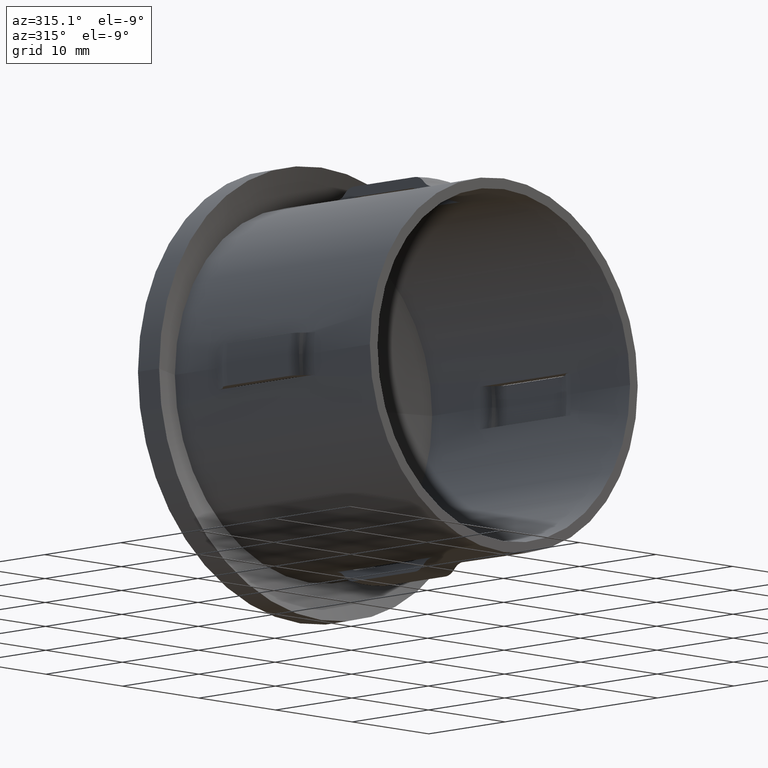
[diagram: clean part render]
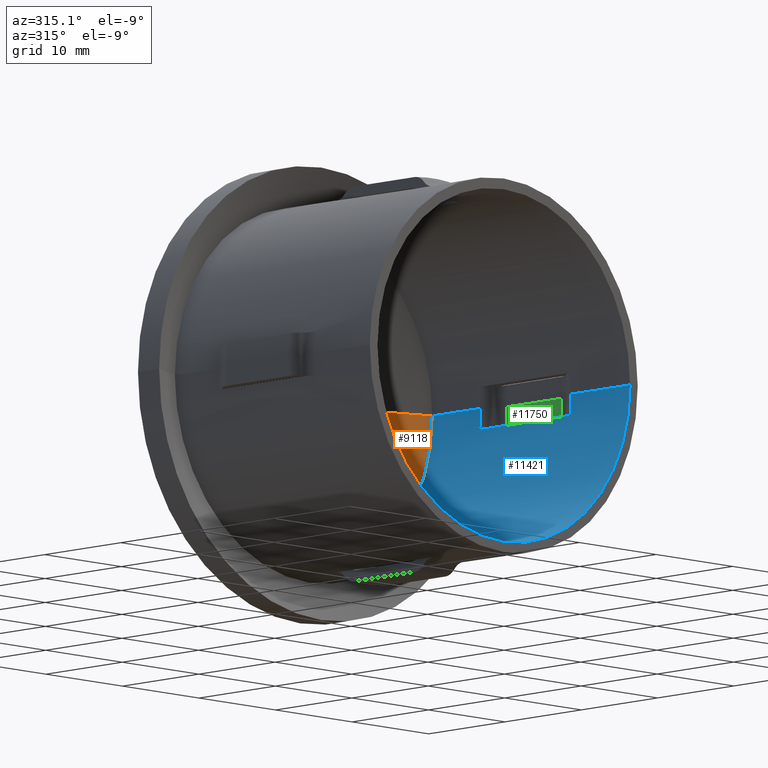
[diagram: same view with three faces highlighted in distinct colors, each labeled with its STEP entity id]
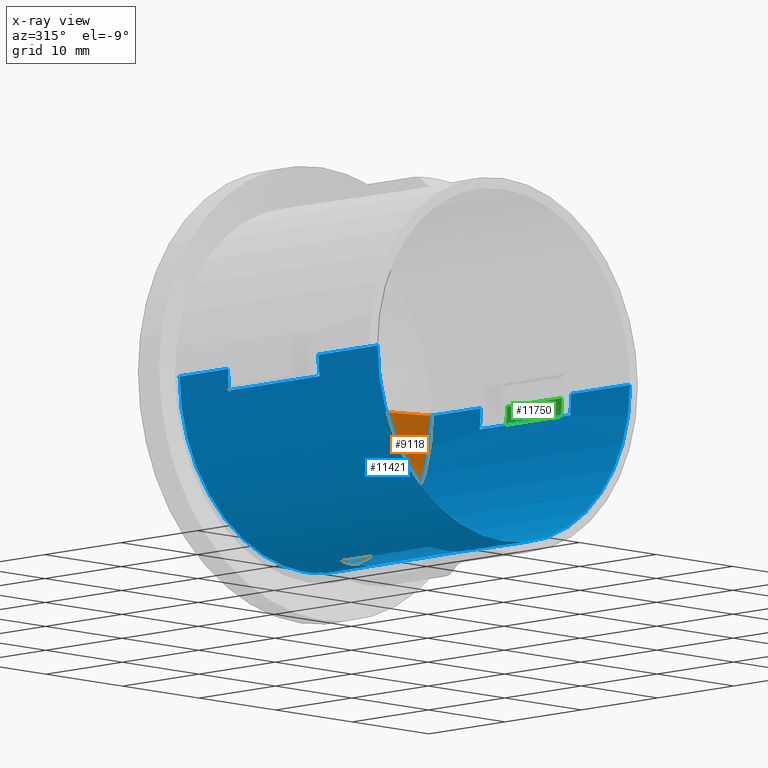
[diagram: x-ray of the same camera — body ghosted, the three highlighted faces saturated]
A machine part, auxiliary view with three faces highlighted in distinct colors.
The next image is the same camera in x-ray (body ghosted, the three faces saturated) — at least one of them is partly hidden behind the body in this view.
Their STEP definitions:

[orange] entity #9118 — the highlighted spherical surface has radius 47.5 mm.
#1 = B_SPLINE_CURVE_WITH_KNOTS ( 'NONE', 3,
 ( #3965, #2959, #11730, #8395 ),
 .UNSPECIFIED., .F., .F.,
 ( 4, 4 ),
 ( 0.0003123063050347144300, 0.0004518323523756138700 ),
 .UNSPECIFIED. ) ;
#10 = ORIENTED_EDGE ( 'NONE', *, *, #3679, .T. ) ;
#11 = CARTESIAN_POINT ( 'NONE',  ( 0.5936164529914526000, 28.81580472497133300, -2.763888888888889300 ) ) ;
#35 = DIRECTION ( 'NONE',  ( -1.224646799147353200E-016, 3.557430204473923300E-031, -1.000000000000000000 ) ) ;
#57 = CARTESIAN_POINT ( 'NONE',  ( 2.777470003932155200, 28.75860260697527000, -2.388403265765987700 ) ) ;
#73 = EDGE_CURVE ( 'NONE', #12124, #3719, #13384, .T. ) ;
#90 = CARTESIAN_POINT ( 'NONE',  ( -4.200538521075421400E-015, -18.60000000000000500, -2.763888888888889300 ) ) ;
#94 = EDGE_CURVE ( 'NONE', #7887, #12328, #12744, .T. ) ;
#108 = CIRCLE ( 'NONE', #3961, 47.34782460679669200 ) ;
#123 = VERTEX_POINT ( 'NONE', #5028 ) ;
#141 = CARTESIAN_POINT ( 'NONE',  ( 1.610814213836384600, 28.87269966974314200, -0.01587134176817903500 ) ) ;
#148 = VERTEX_POINT ( 'NONE', #8356 ) ;
#149 = CARTESIAN_POINT ( 'NONE',  ( 2.900240384615385500, 28.70293300599798100, -3.204861111111111600 ) ) ;
#153 = CARTESIAN_POINT ( 'NONE',  ( 2.780582879273563600, 28.75444017290868700, -2.466057218956666700 ) ) ;
#178 = ORIENTED_EDGE ( 'NONE', *, *, #8158, .T. ) ;
#185 = CARTESIAN_POINT ( 'NONE',  ( 3.413294604700855200, 28.70262021674962900, -2.657355936164529800 ) ) ;
#187 = VERTEX_POINT ( 'NONE', #3926 ) ;
#191 = AXIS2_PLACEMENT_3D ( 'NONE', #11982, #8690, #12931 ) ;
#197 = EDGE_CURVE ( 'NONE', #4861, #1748, #463, .T. ) ;
#204 = CARTESIAN_POINT ( 'NONE',  ( -1.538473368597382800, 28.87507872235828500, 5.604461258143858500E-012 ) ) ;
#218 = ORIENTED_EDGE ( 'NONE', *, *, #13123, .T. ) ;
#229 = VERTEX_POINT ( 'NONE', #2684 ) ;
#251 = B_SPLINE_CURVE_WITH_KNOTS ( 'NONE', 3,
 ( #13046, #7634, #10732, #9734, #6475, #3241, #11961, #2204, #5491, #10915, #6431, #13001 ),
 .UNSPECIFIED., .F., .F.,
 ( 4, 2, 2, 2, 2, 4 ),
 ( 0.0000000000000000000, 0.0002294742421389988700, 0.0004589484842779977300, 0.0006884227264169960600, 0.0008031598474864960300, 0.0009178969685559959000 ),
 .UNSPECIFIED. ) ;
#263 = CIRCLE ( 'NONE', #1653, 47.49386795650909900 ) ;
#305 = AXIS2_PLACEMENT_3D ( 'NONE', #11864, #3053, #6377 ) ;
#316 = VERTEX_POINT ( 'NONE', #13995 ) ;
#319 = ORIENTED_EDGE ( 'NONE', *, *, #10233, .T. ) ;
#320 = CIRCLE ( 'NONE', #2210, 47.30426841897509100 ) ;
#335 = EDGE_LOOP ( 'NONE', ( #6595, #8765, #624, #8773, #2682, #13528, #4319, #13897, #4059, #626, #5765, #6905, #10916, #12802, #1482, #2178, #7718, #11235, #13777, #11259, #7255, #7806, #3572, #2393, #13574, #9075, #3140, #7184, #8750, #12103, #10643, #12568, #10059, #2609 ) ) ;
#341 = CARTESIAN_POINT ( 'NONE',  ( -2.982127654246795200, 28.80629311595909300, -0.01696047008547008400 ) ) ;
#349 = EDGE_CURVE ( 'NONE', #7500, #9537, #9999, .T. ) ;
#392 = CARTESIAN_POINT ( 'NONE',  ( -2.074756227578924900, 28.74934571720291700, -3.160343080672297000 ) ) ;
#401 = CARTESIAN_POINT ( 'NONE',  ( 1.666923290498207000, 28.82878445783693200, -1.996132217361676700 ) ) ;
#428 = VERTEX_POINT ( 'NONE', #6522 ) ;
#432 = VERTEX_POINT ( 'NONE', #13052 ) ;
#440 = CARTESIAN_POINT ( 'NONE',  ( 1.907600554087974600, 28.77608634442443900, -2.850163326384269200 ) ) ;
#443 = CARTESIAN_POINT ( 'NONE',  ( 3.069845085470086100, 28.74539628850200000, -2.288995726495726600 ) ) ;
#452 = CARTESIAN_POINT ( 'NONE',  ( 1.450744556871377300, 28.84160247222118300, -1.855377532987873900 ) ) ;
#457 = EDGE_CURVE ( 'NONE', #5505, #12529, #9080, .T. ) ;
#463 = CIRCLE ( 'NONE', #9207, 47.50000000000000000 ) ;
#472 = CARTESIAN_POINT ( 'NONE',  ( 3.267215372402773700, 28.75110241472287200, -1.857866861441391100 ) ) ;
#481 = AXIS2_PLACEMENT_3D ( 'NONE', #8329, #6060, #9377 ) ;
#484 = B_SPLINE_CURVE_WITH_KNOTS ( 'NONE', 3,
 ( #5776, #5875, #12197, #13464 ),
 .UNSPECIFIED., .F., .F.,
 ( 4, 4 ),
 ( 2.194714508423963200E-019, 0.0001354809792551185600 ),
 .UNSPECIFIED. ) ;
#492 = CARTESIAN_POINT ( 'NONE',  ( 1.378038194444444600, 28.80558479929535300, -2.657355936164529800 ) ) ;
#502 = AXIS2_PLACEMENT_3D ( 'NONE', #5836, #2716, #2576 ) ;
#504 = CARTESIAN_POINT ( 'NONE',  ( 3.197048611111107200, 28.79228713807967200, 0.0000000000000000000 ) ) ;
#511 = DIRECTION ( 'NONE',  ( 1.000000000000000000, 0.0000000000000000000, 0.0000000000000000000 ) ) ;
#530 = CARTESIAN_POINT ( 'NONE',  ( 3.109215555847677500, 28.75007104848711800, -2.134280016099891200 ) ) ;
#537 = DIRECTION ( 'NONE',  ( 1.000000000000000000, -2.449293598294745100E-017, 0.0000000000000000000 ) ) ;
#544 = CARTESIAN_POINT ( 'NONE',  ( 3.587139423076920200, 28.76435823231860000, 0.0000000000000000000 ) ) ;
#549 = EDGE_CURVE ( 'NONE', #187, #5591, #9717, .T. ) ;
#561 = CARTESIAN_POINT ( 'NONE',  ( -4.200538521075421400E-015, -18.60000000000000500, 0.0000000000000000000 ) ) ;
#570 = ORIENTED_EDGE ( 'NONE', *, *, #11569, .T. ) ;
#577 = ORIENTED_EDGE ( 'NONE', *, *, #5984, .T. ) ;
#607 = CARTESIAN_POINT ( 'NONE',  ( 3.468416132478629300, 28.77320011918089900, 0.0000000000000000000 ) ) ;
#613 = CARTESIAN_POINT ( 'NONE',  ( 0.5936164529914526000, 28.86032478433318000, -1.848023504273504500 ) ) ;
#621 = CARTESIAN_POINT ( 'NONE',  ( -4.200538521075421400E-015, -18.60000000000000500, 0.0000000000000000000 ) ) ;
#624 = ORIENTED_EDGE ( 'NONE', *, *, #13334, .T. ) ;
#626 = ORIENTED_EDGE ( 'NONE', *, *, #3838, .T. ) ;
#637 = EDGE_CURVE ( 'NONE', #8660, #9269, #13549, .T. ) ;
#651 = CARTESIAN_POINT ( 'NONE',  ( 3.113918614586340000, 28.75831562486198600, -1.935654551365148200 ) ) ;
#659 = ORIENTED_EDGE ( 'NONE', *, *, #8613, .T. ) ;
#666 = CARTESIAN_POINT ( 'NONE',  ( -1.371563179528122200, 28.81714653186623200, -2.446050152142812600 ) ) ;
#671 = DIRECTION ( 'NONE',  ( -0.8369330630277728200, 2.049894793475136300E-017, 0.5473052603538085500 ) ) ;
#695 = VERTEX_POINT ( 'NONE', #11563 ) ;
#696 = DIRECTION ( 'NONE',  ( -1.224646799147353200E-016, 3.557430204473923300E-031, -1.000000000000000000 ) ) ;
#697 = DIRECTION ( 'NONE',  ( -0.6837766319733928900, 0.0000000000000000000, -0.7296913851534243500 ) ) ;
#721 = CARTESIAN_POINT ( 'NONE',  ( -2.309008997729700100, 28.78097584228811500, -2.441639957264957400 ) ) ;
#773 = FACE_BOUND ( 'NONE', #11385, .T. ) ;
#812 = CIRCLE ( 'NONE', #11966, 47.50000000000000000 ) ;
#828 = DIRECTION ( 'NONE',  ( 0.0000000000000000000, -0.0000000000000000000, 1.000000000000000000 ) ) ;
#830 = DIRECTION ( 'NONE',  ( 2.746118649521055200E-017, 1.000000000000000000, 0.0000000000000000000 ) ) ;
#850 = DIRECTION ( 'NONE',  ( 0.0000000000000000000, 0.0000000000000000000, -1.000000000000000000 ) ) ;
#872 = AXIS2_PLACEMENT_3D ( 'NONE', #3850, #11462, #5000 ) ;
#885 = VERTEX_POINT ( 'NONE', #1184 ) ;
#895 = EDGE_CURVE ( 'NONE', #12665, #12437, #2105, .T. ) ;
#907 = AXIS2_PLACEMENT_3D ( 'NONE', #5954, #13542, #3793 ) ;
#908 = CARTESIAN_POINT ( 'NONE',  ( -4.200538521075421400E-015, -18.60000000000000500, 0.0000000000000000000 ) ) ;
#934 = B_SPLINE_CURVE_WITH_KNOTS ( 'NONE', 3,
 ( #12872, #13862, #11693, #8459, #1927, #8359, #9563, #3024, #4122, #11743 ),
 .UNSPECIFIED., .F., .F.,
 ( 4, 2, 2, 2, 4 ),
 ( 0.0000000000000000000, 0.0001570379246596876900, 0.0003140758493193753900, 0.0004711137739790630800, 0.0006281516986387507700 ),
 .UNSPECIFIED. ) ;
#938 = AXIS2_PLACEMENT_3D ( 'NONE', #12995, #4393, #8754 ) ;
#942 = EDGE_CURVE ( 'NONE', #9273, #10816, #9656, .T. ) ;
#944 = VERTEX_POINT ( 'NONE', #9956 ) ;
#953 = EDGE_CURVE ( 'NONE', #12328, #1862, #8649, .T. ) ;
#968 = CARTESIAN_POINT ( 'NONE',  ( 3.434731845099416900, 28.73957803232180600, -1.849245028400688100 ) ) ;
#995 = ORIENTED_EDGE ( 'NONE', *, *, #3890, .T. ) ;
#1003 = CARTESIAN_POINT ( 'NONE',  ( -1.103855099372407700, 28.77998399376436500, -3.189280802948203200 ) ) ;
#1017 = AXIS2_PLACEMENT_3D ( 'NONE', #13823, #7195, #697 ) ;
#1030 = CARTESIAN_POINT ( 'NONE',  ( -4.200538521075421400E-015, -18.60000000000000500, -2.288995726495726600 ) ) ;
#1033 = EDGE_CURVE ( 'NONE', #695, #12124, #10393, .T. ) ;
#1052 = AXIS2_PLACEMENT_3D ( 'NONE', #10411, #13592, #511 ) ;
#1053 = CARTESIAN_POINT ( 'NONE',  ( -2.620865891070339100, 28.76121052454875500, -2.510321284340750300 ) ) ;
#1054 = DIRECTION ( 'NONE',  ( -2.745632241905695500E-017, -1.000000000000000000, 0.0000000000000000000 ) ) ;
#1090 = CIRCLE ( 'NONE', #11889, 47.49629058681043100 ) ;
#1101 = VERTEX_POINT ( 'NONE', #5974 ) ;
#1107 = CARTESIAN_POINT ( 'NONE',  ( 1.567461187016131900, 28.82841126391505100, -2.083313005484647800 ) ) ;
#1111 = AXIS2_PLACEMENT_3D ( 'NONE', #7229, #12826, #6194 ) ;
#1112 = CARTESIAN_POINT ( 'NONE',  ( -16.49999999999987600, 25.94211490264027000, 0.0000000000000000000 ) ) ;
#1167 = CARTESIAN_POINT ( 'NONE',  ( -2.329944577991451800, 28.73214181808996800, -3.238782051282051500 ) ) ;
#1184 = CARTESIAN_POINT ( 'NONE',  ( -2.145499465811966800, 28.85152086121371100, 0.0000000000000000000 ) ) ;
#1197 = DIRECTION ( 'NONE',  ( 1.000000000000000000, 0.0000000000000000000, 0.0000000000000000000 ) ) ;
#1206 = ORIENTED_EDGE ( 'NONE', *, *, #2916, .T. ) ;
#1210 = CARTESIAN_POINT ( 'NONE',  ( -2.652291210170918400, 28.72545081000991700, -3.085427441855173500 ) ) ;
#1227 = CARTESIAN_POINT ( 'NONE',  ( 1.745304141202861800, 28.81277155153603800, -2.288056202451147500 ) ) ;
#1241 = ORIENTED_EDGE ( 'NONE', *, *, #14097, .T. ) ;
#1243 = ORIENTED_EDGE ( 'NONE', *, *, #11893, .T. ) ;
#1245 = CARTESIAN_POINT ( 'NONE',  ( -1.404008914262821400, 28.87924253093265700, -0.01696047008547008400 ) ) ;
#1250 = VERTEX_POINT ( 'NONE', #4711 ) ;
#1253 = CARTESIAN_POINT ( 'NONE',  ( -2.577731606950366800, 28.72460496562481300, -3.160675583361750400 ) ) ;
#1276 = DIRECTION ( 'NONE',  ( -1.000000000000000000, 0.0000000000000000000, 1.224646799147353200E-016 ) ) ;
#1281 = CARTESIAN_POINT ( 'NONE',  ( 3.469833520600896600, 28.70185607347612600, -2.598335616227405200 ) ) ;
#1283 = FACE_BOUND ( 'NONE', #6061, .T. ) ;
#1302 = AXIS2_PLACEMENT_3D ( 'NONE', #6226, #671, #8299 ) ;
#1336 = CARTESIAN_POINT ( 'NONE',  ( -1.996775774789501000, 28.75760600848624900, -3.085929566408364800 ) ) ;
#1382 = EDGE_CURVE ( 'NONE', #5552, #11659, #263, .T. ) ;
#1394 = VERTEX_POINT ( 'NONE', #12459 ) ;
#1396 = CARTESIAN_POINT ( 'NONE',  ( 1.308718801908817900E-013, 28.89999999999999500, 0.0000000000000000000 ) ) ;
#1410 = CARTESIAN_POINT ( 'NONE',  ( 2.324909438434829700, 28.73238940648748500, -3.238782051282051500 ) ) ;
#1442 = VERTEX_POINT ( 'NONE', #12780 ) ;
#1446 = EDGE_CURVE ( 'NONE', #6821, #2253, #8096, .T. ) ;
#1464 = AXIS2_PLACEMENT_3D ( 'NONE', #7563, #850, #10758 ) ;
#1466 = AXIS2_PLACEMENT_3D ( 'NONE', #4147, #1901, #3178 ) ;
#1478 = CARTESIAN_POINT ( 'NONE',  ( 1.377776615326075800, 28.83852998650339600, -1.984677329804385400 ) ) ;
#1482 = ORIENTED_EDGE ( 'NONE', *, *, #9719, .T. ) ;
#1525 = CARTESIAN_POINT ( 'NONE',  ( -2.221395565359421300, 28.73807433481755400, -3.228779335341246600 ) ) ;
#1532 = EDGE_CURVE ( 'NONE', #1442, #9537, #5214, .T. ) ;
#1543 = VERTEX_POINT ( 'NONE', #9784 ) ;
#1575 = ORIENTED_EDGE ( 'NONE', *, *, #895, .T. ) ;
#1579 = CARTESIAN_POINT ( 'NONE',  ( 3.602611294627013000, 28.71736280079602800, -2.083193909958142200 ) ) ;
#1604 = DIRECTION ( 'NONE',  ( 0.0000000000000000000, -0.0000000000000000000, 1.000000000000000000 ) ) ;
#1606 = CARTESIAN_POINT ( 'NONE',  ( 3.780560805776566700, 28.69402060812370100, -2.288048880836949900 ) ) ;
#1653 = AXIS2_PLACEMENT_3D ( 'NONE', #11408, #7055, #2736 ) ;
#1675 = CARTESIAN_POINT ( 'NONE',  ( 0.7038595085470060700, 28.89478478519749800, 0.0000000000000000000 ) ) ;
#1686 = EDGE_CURVE ( 'NONE', #944, #13279, #11511, .T. ) ;
#1704 = ORIENTED_EDGE ( 'NONE', *, *, #5713, .T. ) ;
#1708 = VERTEX_POINT ( 'NONE', #5021 ) ;
#1739 = CARTESIAN_POINT ( 'NONE',  ( -4.200538521075421400E-015, -18.60000000000000500, 0.0000000000000000000 ) ) ;
#1748 = VERTEX_POINT ( 'NONE', #11485 ) ;
#1766 = DIRECTION ( 'NONE',  ( 2.396777221867288500E-017, 1.000000000000000000, 0.0000000000000000000 ) ) ;
#1774 = DIRECTION ( 'NONE',  ( -1.224646799147353200E-016, 3.557430204473923300E-031, -1.000000000000000000 ) ) ;
#1792 = CARTESIAN_POINT ( 'NONE',  ( -0.2544070512820498800, 28.82655179175830900, -2.628205128205128600 ) ) ;
#1803 = EDGE_CURVE ( 'NONE', #2879, #8978, #7930, .T. ) ;
#1828 = EDGE_CURVE ( 'NONE', #12938, #4761, #1, .T. ) ;
#1862 = VERTEX_POINT ( 'NONE', #7369 ) ;
#1865 = DIRECTION ( 'NONE',  ( 0.0000000000000000000, -0.0000000000000000000, 1.000000000000000000 ) ) ;
#1894 = B_SPLINE_CURVE_WITH_KNOTS ( 'NONE', 3,
 ( #9152, #8198, #2717, #5886, #10212, #11346, #530, #9294, #13431, #443 ),
 .UNSPECIFIED., .F., .F.,
 ( 4, 2, 2, 2, 4 ),
 ( 0.0000000000000000000, 0.0001192207449055118400, 0.0002384414898110236800, 0.0003576622347165355100, 0.0004768829796220473600 ),
 .UNSPECIFIED. ) ;
#1898 = EDGE_CURVE ( 'NONE', #13367, #4250, #1090, .T. ) ;
#1901 = DIRECTION ( 'NONE',  ( 0.0000000000000000000, 0.0000000000000000000, -1.000000000000000000 ) ) ;
#1924 = DIRECTION ( 'NONE',  ( 1.000000000000000000, 0.0000000000000000000, 0.0000000000000000000 ) ) ;
#1926 = EDGE_LOOP ( 'NONE', ( #10, #5135, #4647, #12975 ) ) ;
#1927 = CARTESIAN_POINT ( 'NONE',  ( -1.560187058890897700, 28.76907403777109500, -3.160608516996030700 ) ) ;
#1962 = AXIS2_PLACEMENT_3D ( 'NONE', #1739, #696, #13782 ) ;
#1991 = CIRCLE ( 'NONE', #872, 47.49998907956171500 ) ;
#2012 = CARTESIAN_POINT ( 'NONE',  ( -0.9004715844226495200, 28.80363252573304300, -2.887506672426231700 ) ) ;
#2013 = CIRCLE ( 'NONE', #502, 47.50000000000000000 ) ;
#2025 = CARTESIAN_POINT ( 'NONE',  ( -4.200538521075421400E-015, -18.60000000000000500, 0.0000000000000000000 ) ) ;
#2036 = VERTEX_POINT ( 'NONE', #3633 ) ;
#2038 = CARTESIAN_POINT ( 'NONE',  ( -1.239692319090557100, 28.82095999177336100, -2.443029231540083700 ) ) ;
#2039 = DIRECTION ( 'NONE',  ( 0.0000000000000000000, -0.0000000000000000000, 1.000000000000000000 ) ) ;
#2050 = VERTEX_POINT ( 'NONE', #9056 ) ;
#2067 = AXIS2_PLACEMENT_3D ( 'NONE', #11773, #7455, #8490 ) ;
#2077 = CARTESIAN_POINT ( 'NONE',  ( -2.187900641025639600, 28.81358349579423700, -1.848023504273504300 ) ) ;
#2105 = B_SPLINE_CURVE_WITH_KNOTS ( 'NONE', 3,
 ( #2239, #1281, #7857, #13177, #2429, #11149, #9867, #12105 ),
 .UNSPECIFIED., .F., .F.,
 ( 4, 2, 2, 4 ),
 ( 0.0000000000000000000, 0.0002451878729591678500, 0.0003677818094387526500, 0.0004903757459183374400 ),
 .UNSPECIFIED. ) ;
#2118 = CIRCLE ( 'NONE', #5851, 16.50000000000000000 ) ;
#2135 = DIRECTION ( 'NONE',  ( 1.000000000000000000, 0.0000000000000000000, 0.0000000000000000000 ) ) ;
#2167 = CARTESIAN_POINT ( 'NONE',  ( 1.746928418803419100, 28.81492212892972700, -2.241294404380342000 ) ) ;
#2172 = EDGE_CURVE ( 'NONE', #6040, #3828, #8756, .T. ) ;
#2178 = ORIENTED_EDGE ( 'NONE', *, *, #8053, .T. ) ;
#2204 = CARTESIAN_POINT ( 'NONE',  ( 2.137467508457876700, 28.81408993997694900, -1.893893791318925800 ) ) ;
#2210 = AXIS2_PLACEMENT_3D ( 'NONE', #12623, #12484, #7080 ) ;
#2234 = DIRECTION ( 'NONE',  ( 0.0000000000000000000, 0.0000000000000000000, -1.000000000000000000 ) ) ;
#2239 = CARTESIAN_POINT ( 'NONE',  ( 3.413294604700855200, 28.70262021674962900, -2.657355936164529800 ) ) ;
#2253 = VERTEX_POINT ( 'NONE', #7810 ) ;
#2258 = VERTEX_POINT ( 'NONE', #11144 ) ;
#2267 = DIRECTION ( 'NONE',  ( -0.8369330630277724800, 2.049894793475135400E-017, 0.5473052603538090000 ) ) ;
#2310 = EDGE_CURVE ( 'NONE', #10762, #10286, #6428, .T. ) ;
#2312 = DIRECTION ( 'NONE',  ( -0.7297249646783454700, 1.787310684502530700E-017, 0.6837407958614050200 ) ) ;
#2320 = FACE_BOUND ( 'NONE', #12674, .T. ) ;
#2348 = CARTESIAN_POINT ( 'NONE',  ( -4.163795405982905400, 28.71715130708013700, 0.0000000000000000000 ) ) ;
#2378 = CARTESIAN_POINT ( 'NONE',  ( -1.963701627880940300, 28.78622850512404000, -2.634740049770944600 ) ) ;
#2393 = ORIENTED_EDGE ( 'NONE', *, *, #1532, .F. ) ;
#2429 = CARTESIAN_POINT ( 'NONE',  ( 3.624118579891404000, 28.70028362571965600, -2.408447389724652800 ) ) ;
#2464 = ORIENTED_EDGE ( 'NONE', *, *, #10325, .T. ) ;
#2470 = CIRCLE ( 'NONE', #7639, 47.40914756629770500 ) ;
#2474 = EDGE_CURVE ( 'NONE', #5139, #3346, #9971, .T. ) ;
#2483 = SPHERICAL_SURFACE ( 'NONE', #6833, 47.50000000000000000 ) ;
#2484 = CARTESIAN_POINT ( 'NONE',  ( 1.657115695876904000, 28.87110685234593200, -0.01155972976702245400 ) ) ;
#2493 = DIRECTION ( 'NONE',  ( -0.7863974287229254000, 0.0000000000000000000, 0.6177208787939512100 ) ) ;
#2510 = CIRCLE ( 'NONE', #191, 47.49293154820183800 ) ;
#2511 = CARTESIAN_POINT ( 'NONE',  ( -3.409054487179486800, 28.66898785421504000, -3.204861111111111600 ) ) ;
#2532 = CARTESIAN_POINT ( 'NONE',  ( 1.341202173477564500, 28.83960457483614100, -1.983707264957265300 ) ) ;
#2558 = CARTESIAN_POINT ( 'NONE',  ( -1.603247870517148500, 28.80656824610662200, -2.510336949988010600 ) ) ;
#2565 = CARTESIAN_POINT ( 'NONE',  ( -4.200538521075421400E-015, -18.60000000000000500, 0.0000000000000000000 ) ) ;
#2576 = DIRECTION ( 'NONE',  ( 1.000000000000000000, 0.0000000000000000000, 0.0000000000000000000 ) ) ;
#2577 = CARTESIAN_POINT ( 'NONE',  ( 1.434580206983896000, 28.80724978317919100, -2.598332383681360100 ) ) ;
#2609 = ORIENTED_EDGE ( 'NONE', *, *, #11165, .T. ) ;
#2637 = CARTESIAN_POINT ( 'NONE',  ( 3.517467452725065300, 28.72673815778875200, -2.014593814588340900 ) ) ;
#2659 = DIRECTION ( 'NONE',  ( -1.000000000000000000, 2.449293598294745100E-017, 0.0000000000000000000 ) ) ;
#2660 = FACE_OUTER_BOUND ( 'NONE', #335, .T. ) ;
#2671 = CARTESIAN_POINT ( 'NONE',  ( 1.566312649307471700, 28.81132731996133600, -2.442207606113690100 ) ) ;
#2682 = ORIENTED_EDGE ( 'NONE', *, *, #8027, .T. ) ;
#2684 = CARTESIAN_POINT ( 'NONE',  ( 2.324909438434829700, 28.80706282011920300, -1.848023504273504500 ) ) ;
#2686 = CARTESIAN_POINT ( 'NONE',  ( 3.663461538461539200, 28.70494709673084800, -2.251894698183760600 ) ) ;
#2716 = DIRECTION ( 'NONE',  ( 0.0000000000000000000, -0.0000000000000000000, 1.000000000000000000 ) ) ;
#2717 = CARTESIAN_POINT ( 'NONE',  ( 3.296808346605392800, 28.74366516778688000, -1.989986206869410100 ) ) ;
#2736 = DIRECTION ( 'NONE',  ( 2.511108151532653600E-017, 1.000000000000000000, 0.0000000000000000000 ) ) ;
#2740 = CARTESIAN_POINT ( 'NONE',  ( 2.753787516360805200, 28.73442217376139500, -2.850449187000966900 ) ) ;
#2761 = B_SPLINE_CURVE_WITH_KNOTS ( 'NONE', 3,
 ( #8747, #9132, #9181, #5768, #2558, #13359 ),
 .UNSPECIFIED., .F., .F.,
 ( 4, 2, 4 ),
 ( 0.0000000000000000000, 0.0002071963014099282300, 0.0004143926028198564500 ),
 .UNSPECIFIED. ) ;
#2777 = CARTESIAN_POINT ( 'NONE',  ( 1.763888888888887700, -18.60000000000000500, 0.0000000000000000000 ) ) ;
#2782 = CARTESIAN_POINT ( 'NONE',  ( -4.200538521075421400E-015, -18.60000000000000500, -2.628205128205128600 ) ) ;
#2800 = DIRECTION ( 'NONE',  ( -2.511093901284688800E-017, -1.000000000000000000, 0.0000000000000000000 ) ) ;
#2821 = CARTESIAN_POINT ( 'NONE',  ( -1.916533119658118800, 28.77665767229980900, -2.833585820646367500 ) ) ;
#2825 = CARTESIAN_POINT ( 'NONE',  ( 3.078325320512816700, 28.80014676370832300, 0.0000000000000000000 ) ) ;
#2845 = CARTESIAN_POINT ( 'NONE',  ( -4.200538521075421400E-015, -18.60000000000000500, 0.0000000000000000000 ) ) ;
#2858 = AXIS2_PLACEMENT_3D ( 'NONE', #4079, #7334, #5133 ) ;
#2876 = CARTESIAN_POINT ( 'NONE',  ( -4.200538521075421400E-015, -18.60000000000000500, 0.0000000000000000000 ) ) ;
#2879 = VERTEX_POINT ( 'NONE', #3837 ) ;
#2916 = EDGE_CURVE ( 'NONE', #10444, #316, #934, .T. ) ;
#2921 = CARTESIAN_POINT ( 'NONE',  ( -2.257360973193699200, 28.78342126048036700, -2.443028144359199200 ) ) ;
#2927 = CARTESIAN_POINT ( 'NONE',  ( 0.5936164529914513800, -18.60000000000000500, 0.0000000000000000000 ) ) ;
#2935 = CARTESIAN_POINT ( 'NONE',  ( -0.9460500746589594100, 28.81746011569121500, -2.634785837196632800 ) ) ;
#2959 = CARTESIAN_POINT ( 'NONE',  ( -1.310969046251443800, 28.88192685054500300, -0.01156036758800212100 ) ) ;
#3004 = B_SPLINE_CURVE_WITH_KNOTS ( 'NONE', 3,
 ( #3438, #7824, #6571, #7648, #1107, #10159, #4833, #7917, #1478, #2532 ),
 .UNSPECIFIED., .F., .F.,
 ( 4, 2, 2, 2, 4 ),
 ( 0.0000000000000000000, 0.0001089986700114813300, 0.0002179973400229626600, 0.0003269960100344440000, 0.0004359946800459253200 ),
 .UNSPECIFIED. ) ;
#3012 = CARTESIAN_POINT ( 'NONE',  ( 1.620282249893610700, 28.81503270398367500, -2.332604823348547900 ) ) ;
#3024 = CARTESIAN_POINT ( 'NONE',  ( -1.702729909506086800, 28.77823650028550900, -2.942142202721783400 ) ) ;
#3046 = CIRCLE ( 'NONE', #10965, 47.39175946573927000 ) ;
#3053 = DIRECTION ( 'NONE',  ( 0.0000000000000000000, -0.0000000000000000000, 1.000000000000000000 ) ) ;
#3076 = CARTESIAN_POINT ( 'NONE',  ( -1.092467585728109200, 28.82217243454101000, -2.489328920318950800 ) ) ;
#3079 = CARTESIAN_POINT ( 'NONE',  ( 0.4748931623931618700, 28.80903874720687300, -2.899572649572649900 ) ) ;
#3090 = VERTEX_POINT ( 'NONE', #13854 ) ;
#3140 = ORIENTED_EDGE ( 'NONE', *, *, #1446, .T. ) ;
#3152 = EDGE_CURVE ( 'NONE', #2258, #695, #8533, .T. ) ;
#3154 = CARTESIAN_POINT ( 'NONE',  ( 3.583785268539569500, 28.72684924324017400, -1.891709657084339000 ) ) ;
#3155 = CIRCLE ( 'NONE', #10748, 47.41711860849575500 ) ;
#3157 = CARTESIAN_POINT ( 'NONE',  ( -2.582761585202990200, 28.76632199686647700, -2.451710236378204800 ) ) ;
#3164 = CARTESIAN_POINT ( 'NONE',  ( 2.364184046858284600, 28.80510990699454200, -1.848711789550082200 ) ) ;
#3178 = DIRECTION ( 'NONE',  ( -1.000000000000000000, 0.0000000000000000000, 0.0000000000000000000 ) ) ;
#3185 = CARTESIAN_POINT ( 'NONE',  ( -1.312316372863246800, 28.77127944822482100, -3.238782051282052000 ) ) ;
#3233 = DIRECTION ( 'NONE',  ( 0.0000000000000000000, -0.0000000000000000000, 1.000000000000000000 ) ) ;
#3241 = CARTESIAN_POINT ( 'NONE',  ( 1.991856558683162900, 28.81513490699281400, -2.023229239912322200 ) ) ;
#3290 = B_SPLINE_CURVE_WITH_KNOTS ( 'NONE', 3,
 ( #1167, #5658, #4563, #4471, #1253, #1210, #10896, #9803, #9842, #3450 ),
 .UNSPECIFIED., .F., .F.,
 ( 4, 2, 2, 2, 4 ),
 ( 0.0000000000000000000, 0.0001570396412510599700, 0.0003140792825021199400, 0.0004711189237531799300, 0.0006281585650042398700 ),
 .UNSPECIFIED. ) ;
#3293 = CARTESIAN_POINT ( 'NONE',  ( -4.200538521075421400E-015, -18.60000000000000500, 0.0000000000000000000 ) ) ;
#3321 = CARTESIAN_POINT ( 'NONE',  ( -2.206058081185401100, 28.78547032858037000, -2.450141223337227700 ) ) ;
#3346 = VERTEX_POINT ( 'NONE', #11810 ) ;
#3362 = VERTEX_POINT ( 'NONE', #13077 ) ;
#3364 = CIRCLE ( 'NONE', #1464, 47.41952043420385400 ) ;
#3372 = CARTESIAN_POINT ( 'NONE',  ( -2.067235764524014900, 28.78813738002539000, -2.518658109332564200 ) ) ;
#3378 = B_SPLINE_CURVE_WITH_KNOTS ( 'NONE', 3,
 ( #9615, #2038, #5332, #3076, #10707, #5287, #2935, #13917, #5186, #10750 ),
 .UNSPECIFIED., .F., .F.,
 ( 4, 2, 2, 2, 4 ),
 ( 2.168404344971008900E-019, 0.0001536446162769485300, 0.0003072892325538968500, 0.0004609338488308453600, 0.0006145784651077939200 ),
 .UNSPECIFIED. ) ;
#3393 = ORIENTED_EDGE ( 'NONE', *, *, #5224, .T. ) ;
#3400 = CARTESIAN_POINT ( 'NONE',  ( 2.781517094017094600, 28.75020135757710400, -2.543932792467948900 ) ) ;
#3402 = DIRECTION ( 'NONE',  ( -1.000000000000000000, 0.0000000000000000000, 0.0000000000000000000 ) ) ;
#3404 = DIRECTION ( 'NONE',  ( 0.0000000000000000000, -0.0000000000000000000, 1.000000000000000000 ) ) ;
#3418 = VERTEX_POINT ( 'NONE', #14068 ) ;
#3428 = CARTESIAN_POINT ( 'NONE',  ( 1.606711376602700100, 28.80282423857019600, -2.578650390227678300 ) ) ;
#3438 = CARTESIAN_POINT ( 'NONE',  ( 1.628205128205128400, 28.81864526036965300, -2.251894698183760600 ) ) ;
#3450 = CARTESIAN_POINT ( 'NONE',  ( -2.730635683760683100, 28.73657040694928400, -2.835970886752137200 ) ) ;
#3475 = AXIS2_PLACEMENT_3D ( 'NONE', #14001, #11797, #4224 ) ;
#3476 = CARTESIAN_POINT ( 'NONE',  ( -4.200538521075421400E-015, -18.60000000000000500, 0.0000000000000000000 ) ) ;
#3485 = ORIENTED_EDGE ( 'NONE', *, *, #12375, .T. ) ;
#3498 = AXIS2_PLACEMENT_3D ( 'NONE', #10545, #6239, #830 ) ;
#3514 = CARTESIAN_POINT ( 'NONE',  ( -1.916533119658118800, 28.77665767229980900, -2.833585820646367500 ) ) ;
#3555 = AXIS2_PLACEMENT_3D ( 'NONE', #10802, #5294, #10715 ) ;
#3572 = ORIENTED_EDGE ( 'NONE', *, *, #349, .T. ) ;
#3595 = VERTEX_POINT ( 'NONE', #3758 ) ;
#3620 = B_SPLINE_CURVE_WITH_KNOTS ( 'NONE', 3,
 ( #13060, #3164, #12971, #7552, #14092, #4363, #5465, #12020, #13104, #57, #153, #3400 ),
 .UNSPECIFIED., .F., .F.,
 ( 4, 2, 2, 2, 2, 4 ),
 ( 0.0000000000000000000, 0.0001166164754300748600, 0.0002332329508601497200, 0.0004664659017202994500, 0.0006996988525804491700, 0.0009329318034405989000 ),
 .UNSPECIFIED. ) ;
#3627 = CARTESIAN_POINT ( 'NONE',  ( 2.247493268765581300, 28.73651629703972100, -3.233344784282651900 ) ) ;
#3633 = CARTESIAN_POINT ( 'NONE',  ( 1.378038194444444600, 28.80558479929535300, -2.657355936164529800 ) ) ;
#3640 = CARTESIAN_POINT ( 'NONE',  ( 1.593293470188588400, 28.83441490893150000, -1.921059707229513900 ) ) ;
#3641 = CARTESIAN_POINT ( 'NONE',  ( 1.095217225051392100, 28.84096431261042400, -2.099294963102508000 ) ) ;
#3642 = AXIS2_PLACEMENT_3D ( 'NONE', #561, #4961, #8091 ) ;
#3659 = DIRECTION ( 'NONE',  ( -1.000000000000000000, 2.449293598294745100E-017, 0.0000000000000000000 ) ) ;
#3678 = CIRCLE ( 'NONE', #11093, 47.50000000000000000 ) ;
#3679 = EDGE_CURVE ( 'NONE', #5684, #9756, #13025, .T. ) ;
#3685 = CARTESIAN_POINT ( 'NONE',  ( -1.918101019736618000, 28.77336672112465300, -2.887549012337451900 ) ) ;
#3700 = VERTEX_POINT ( 'NONE', #13456 ) ;
#3715 = ORIENTED_EDGE ( 'NONE', *, *, #73, .T. ) ;
#3719 = VERTEX_POINT ( 'NONE', #7347 ) ;
#3741 = CARTESIAN_POINT ( 'NONE',  ( 3.413016960336281400, 28.73564953905693600, -1.984676903705451900 ) ) ;
#3758 = CARTESIAN_POINT ( 'NONE',  ( 0.04240117521367269700, 28.89998107515770400, 0.0000000000000000000 ) ) ;
#3764 = VERTEX_POINT ( 'NONE', #9748 ) ;
#3793 = DIRECTION ( 'NONE',  ( 1.000000000000000000, 0.0000000000000000000, 0.0000000000000000000 ) ) ;
#3807 = CARTESIAN_POINT ( 'NONE',  ( 3.641948160832173100, 28.69001323952201000, -2.578674735900991200 ) ) ;
#3817 = VERTEX_POINT ( 'NONE', #7389 ) ;
#3828 = VERTEX_POINT ( 'NONE', #7474 ) ;
#3831 = CARTESIAN_POINT ( 'NONE',  ( 2.349025106837602900, 28.84188108673017200, 0.0000000000000000000 ) ) ;
#3837 = CARTESIAN_POINT ( 'NONE',  ( -3.290331196581196300, 28.67740037137502500, -3.204861111111111600 ) ) ;
#3838 = EDGE_CURVE ( 'NONE', #885, #8660, #10483, .T. ) ;
#3850 = CARTESIAN_POINT ( 'NONE',  ( 0.02695531928586977100, -18.60000000000000500, -0.01763100339594039400 ) ) ;
#3858 = CARTESIAN_POINT ( 'NONE',  ( 0.9266228345114573300, 28.84114390801172300, -2.175446503620687400 ) ) ;
#3866 = CARTESIAN_POINT ( 'NONE',  ( -1.360125207936848000, 28.81752997343437900, -2.444976612809974800 ) ) ;
#3877 = CARTESIAN_POINT ( 'NONE',  ( 1.763888888888888800, 28.75892272049841800, -3.204861111111111600 ) ) ;
#3881 = DIRECTION ( 'NONE',  ( -1.000000000000000000, 2.449293598294745100E-017, 0.0000000000000000000 ) ) ;
#3890 = EDGE_CURVE ( 'NONE', #7576, #6500, #9101, .T. ) ;
#3900 = DIRECTION ( 'NONE',  ( 1.000000000000000000, 0.0000000000000000000, 0.0000000000000000000 ) ) ;
#3903 = CARTESIAN_POINT ( 'NONE',  ( 0.9158653846153846900, 28.83597463066767800, -2.288995726495726600 ) ) ;
#3907 = VERTEX_POINT ( 'NONE', #1112 ) ;
#3926 = CARTESIAN_POINT ( 'NONE',  ( 1.702011409923240600, 28.86949712352650400, -4.719540527158873300E-014 ) ) ;
#3961 = AXIS2_PLACEMENT_3D ( 'NONE', #13488, #9121, #13591 ) ;
#3965 = CARTESIAN_POINT ( 'NONE',  ( -1.266070855034022900, 28.88312399779561100, -4.703002208863733100E-014 ) ) ;
#3966 = CARTESIAN_POINT ( 'NONE',  ( -4.200538521075421400E-015, -18.60000000000000500, 0.0000000000000000000 ) ) ;
#3998 = ORIENTED_EDGE ( 'NONE', *, *, #1898, .T. ) ;
#3999 = CARTESIAN_POINT ( 'NONE',  ( -4.200538521075421400E-015, -18.60000000000000500, -3.204861111111111600 ) ) ;
#4007 = CARTESIAN_POINT ( 'NONE',  ( -1.428389590010682900, 28.81503789567908700, -2.454360309829060100 ) ) ;
#4047 = EDGE_CURVE ( 'NONE', #3090, #12938, #9289, .T. ) ;
#4059 = ORIENTED_EDGE ( 'NONE', *, *, #8077, .T. ) ;
#4065 = B_SPLINE_CURVE_WITH_KNOTS ( 'NONE', 3,
 ( #3903, #10427, #3858, #12569, #12433, #9233, #6065, #13652, #13693, #11376 ),
 .UNSPECIFIED., .F., .F.,
 ( 4, 2, 2, 2, 4 ),
 ( 0.0000000000000000000, 0.0001704854350706648600, 0.0003409708701413297100, 0.0005114563052119945400, 0.0006819417402826594300 ),
 .UNSPECIFIED. ) ;
#4079 = CARTESIAN_POINT ( 'NONE',  ( -4.200538521075421400E-015, -18.60000000000000500, 0.0000000000000000000 ) ) ;
#4113 = CARTESIAN_POINT ( 'NONE',  ( -2.378002398868208600, 28.77738995967595100, -2.445000040853618100 ) ) ;
#4122 = CARTESIAN_POINT ( 'NONE',  ( -1.710911315007732000, 28.78120669692347300, -2.889095122534775000 ) ) ;
#4131 = ORIENTED_EDGE ( 'NONE', *, *, #5166, .T. ) ;
#4136 = DIRECTION ( 'NONE',  ( 1.000000000000000000, 0.0000000000000000000, 0.0000000000000000000 ) ) ;
#4147 = CARTESIAN_POINT ( 'NONE',  ( -4.200538521075421400E-015, -18.60000000000000500, -3.069177350427351000 ) ) ;
#4160 = EDGE_CURVE ( 'NONE', #4161, #10816, #8433, .T. ) ;
#4161 = VERTEX_POINT ( 'NONE', #8775 ) ;
#4166 = DIRECTION ( 'NONE',  ( 0.0000000000000000000, -0.0000000000000000000, 1.000000000000000000 ) ) ;
#4169 = DIRECTION ( 'NONE',  ( 1.000000000000000000, 0.0000000000000000000, 0.0000000000000000000 ) ) ;
#4192 = CIRCLE ( 'NONE', #13729, 47.50000000000000000 ) ;
#4202 = CIRCLE ( 'NONE', #5272, 47.41141717402941000 ) ;
#4224 = DIRECTION ( 'NONE',  ( 1.000000000000000000, 0.0000000000000000000, 0.0000000000000000000 ) ) ;
#4246 = EDGE_CURVE ( 'NONE', #3700, #3362, #3004, .T. ) ;
#4249 = CARTESIAN_POINT ( 'NONE',  ( -2.309008997729700100, 28.78097584228811500, -2.441639957264957400 ) ) ;
#4250 = VERTEX_POINT ( 'NONE', #11 ) ;
#4256 = CARTESIAN_POINT ( 'NONE',  ( 0.5936164529914513800, -18.60000000000000500, 0.0000000000000000000 ) ) ;
#4259 = CARTESIAN_POINT ( 'NONE',  ( 3.772763192674377200, 28.70176372442842400, -2.135912887851675500 ) ) ;
#4274 = CARTESIAN_POINT ( 'NONE',  ( 0.7462606837606832200, 28.81364796344770700, -2.763888888888889300 ) ) ;
#4283 = DIRECTION ( 'NONE',  ( 0.0000000000000000000, 0.0000000000000000000, -1.000000000000000000 ) ) ;
#4295 = CARTESIAN_POINT ( 'NONE',  ( -1.258096635036127100, 28.77291438838779000, -3.236838185483688100 ) ) ;
#4319 = ORIENTED_EDGE ( 'NONE', *, *, #1828, .T. ) ;
#4349 = EDGE_CURVE ( 'NONE', #11574, #13853, #9570, .T. ) ;
#4363 = CARTESIAN_POINT ( 'NONE',  ( 2.609867865209527500, 28.78788531738884900, -1.957798445783516700 ) ) ;
#4366 = EDGE_CURVE ( 'NONE', #6821, #10741, #11482, .T. ) ;
#4393 = DIRECTION ( 'NONE',  ( 0.8679300138597093600, -2.125815426714455700E-017, -0.4966865118376833100 ) ) ;
#4396 = DIRECTION ( 'NONE',  ( -2.510980068126082800E-017, -1.000000000000000000, 0.0000000000000000000 ) ) ;
#4403 = CARTESIAN_POINT ( 'NONE',  ( 3.069845085470086100, 28.74539628850200000, -2.288995726495726600 ) ) ;
#4448 = CARTESIAN_POINT ( 'NONE',  ( 1.739486214873448900, 28.81074292125694900, -2.334060180440955500 ) ) ;
#4459 = B_SPLINE_CURVE_WITH_KNOTS ( 'NONE', 3,
 ( #5302, #2012, #10721, #11862, #5346, #7534, #1003, #9726, #4295, #3185 ),
 .UNSPECIFIED., .F., .F.,
 ( 4, 2, 2, 2, 4 ),
 ( 0.0000000000000000000, 0.0001605599240008076200, 0.0003211198480016152400, 0.0004816797720024228700, 0.0006422396960032304900 ),
 .UNSPECIFIED. ) ;
#4471 = CARTESIAN_POINT ( 'NONE',  ( -2.533246952683536200, 28.72506710219093400, -3.189591816212015400 ) ) ;
#4474 = VERTEX_POINT ( 'NONE', #13623 ) ;
#4479 = CARTESIAN_POINT ( 'NONE',  ( -1.917948996971990300, 28.77970003238309000, -2.781760876126897000 ) ) ;
#4485 = DIRECTION ( 'NONE',  ( 0.0000000000000000000, -0.0000000000000000000, 1.000000000000000000 ) ) ;
#4563 = CARTESIAN_POINT ( 'NONE',  ( -2.434899419224889600, 28.72754142659275100, -3.229225857168848400 ) ) ;
#4578 = EDGE_CURVE ( 'NONE', #944, #1708, #12171, .T. ) ;
#4579 = CARTESIAN_POINT ( 'NONE',  ( -2.730635683760683100, 28.73657040694928400, -2.835970886752137200 ) ) ;
#4620 = DIRECTION ( 'NONE',  ( -2.904862207577519400E-015, -1.000000000000000000, -0.0000000000000000000 ) ) ;
#4647 = ORIENTED_EDGE ( 'NONE', *, *, #1382, .T. ) ;
#4654 = CARTESIAN_POINT ( 'NONE',  ( 3.662484335461091000, 28.70677022556030200, -2.215186468759306100 ) ) ;
#4689 = ORIENTED_EDGE ( 'NONE', *, *, #8800, .T. ) ;
#4708 = ORIENTED_EDGE ( 'NONE', *, *, #10038, .T. ) ;
#4711 = CARTESIAN_POINT ( 'NONE',  ( -1.565133380074785100, 28.81085819112973900, -2.451710236378204800 ) ) ;
#4719 = CIRCLE ( 'NONE', #4727, 47.49629058681043100 ) ;
#4727 = AXIS2_PLACEMENT_3D ( 'NONE', #2927, #9792, #10600 ) ;
#4736 = CIRCLE ( 'NONE', #6619, 47.49413748023931000 ) ;
#4737 = CARTESIAN_POINT ( 'NONE',  ( 1.993467638567413900, 28.75917994644647300, -3.064325235815619700 ) ) ;
#4751 = CARTESIAN_POINT ( 'NONE',  ( 1.045262569916445300, 28.83710787759273900, -2.209031939955314900 ) ) ;
#4761 = VERTEX_POINT ( 'NONE', #10094 ) ;
#4764 = EDGE_CURVE ( 'NONE', #9756, #5552, #10646, .T. ) ;
#4768 = AXIS2_PLACEMENT_3D ( 'NONE', #11976, #3404, #9883 ) ;
#4816 = CARTESIAN_POINT ( 'NONE',  ( 2.961885376912246800, 28.75766304070394600, -2.175390296233595600 ) ) ;
#4833 = CARTESIAN_POINT ( 'NONE',  ( 1.482298995773761600, 28.83411574883862400, -2.014636026718355800 ) ) ;
#4861 = VERTEX_POINT ( 'NONE', #1396 ) ;
#4881 = B_SPLINE_CURVE_WITH_KNOTS ( 'NONE', 3,
 ( #5368, #10787, #12876, #6392 ),
 .UNSPECIFIED., .F., .F.,
 ( 4, 4 ),
 ( 0.0000000000000000000, 0.0001422578347680728300 ),
 .UNSPECIFIED. ) ;
#4945 = ORIENTED_EDGE ( 'NONE', *, *, #11303, .T. ) ;
#4946 = CARTESIAN_POINT ( 'NONE',  ( 2.661210553557443500, 28.72629714515177200, -3.065229240361605300 ) ) ;
#4950 = AXIS2_PLACEMENT_3D ( 'NONE', #3293, #10970, #1197 ) ;
#4957 = CARTESIAN_POINT ( 'NONE',  ( 3.161822580983332000, 28.75651515127199800, -1.901740294522667400 ) ) ;
#4961 = DIRECTION ( 'NONE',  ( 0.0000000000000000000, -0.0000000000000000000, 1.000000000000000000 ) ) ;
#4972 = EDGE_CURVE ( 'NONE', #3764, #10414, #5250, .T. ) ;
#4976 = CARTESIAN_POINT ( 'NONE',  ( -2.582761585202990200, 28.76632199686647700, -2.451710236378204800 ) ) ;
#4986 = DIRECTION ( 'NONE',  ( -1.000000000000000000, 0.0000000000000000000, 0.0000000000000000000 ) ) ;
#5000 = DIRECTION ( 'NONE',  ( -0.5473879298857830000, 0.0000000000000000000, -0.8368789961609487400 ) ) ;
#5021 = CARTESIAN_POINT ( 'NONE',  ( 4.197716346153843100, 28.71415409237738800, 0.0000000000000000000 ) ) ;
#5024 = ORIENTED_EDGE ( 'NONE', *, *, #4349, .T. ) ;
#5025 = VERTEX_POINT ( 'NONE', #13955 ) ;
#5028 = CARTESIAN_POINT ( 'NONE',  ( 0.5936164529914526000, 28.78804157976171000, -3.204861111111111600 ) ) ;
#5055 = DIRECTION ( 'NONE',  ( 1.000000000000000000, 0.0000000000000000000, 0.0000000000000000000 ) ) ;
#5062 = CARTESIAN_POINT ( 'NONE',  ( -1.337285963270203200, 28.81829562630564500, -2.442832978574979800 ) ) ;
#5065 = VERTEX_POINT ( 'NONE', #9698 ) ;
#5069 = DIRECTION ( 'NONE',  ( -1.000000000000000000, 0.0000000000000000000, 1.224646799147353200E-016 ) ) ;
#5128 = DIRECTION ( 'NONE',  ( 1.000000000000000000, 0.0000000000000000000, 0.0000000000000000000 ) ) ;
#5133 = DIRECTION ( 'NONE',  ( -1.000000000000000000, 0.0000000000000000000, 1.224646799147353200E-016 ) ) ;
#5135 = ORIENTED_EDGE ( 'NONE', *, *, #4764, .T. ) ;
#5139 = VERTEX_POINT ( 'NONE', #11295 ) ;
#5160 = DIRECTION ( 'NONE',  ( 1.000000000000000000, 0.0000000000000000000, 0.0000000000000000000 ) ) ;
#5166 = EDGE_CURVE ( 'NONE', #10414, #2050, #6990, .T. ) ;
#5186 = CARTESIAN_POINT ( 'NONE',  ( -0.9003207329066206200, 28.80995585358534000, -2.781763033386727400 ) ) ;
#5214 = CIRCLE ( 'NONE', #2858, 47.50000000000000000 ) ;
#5224 = EDGE_CURVE ( 'NONE', #8538, #12665, #320, .T. ) ;
#5235 = FACE_BOUND ( 'NONE', #7459, .T. ) ;
#5250 = B_SPLINE_CURVE_WITH_KNOTS ( 'NONE', 3,
 ( #12465, #12507, #9264, #2740, #11454, #4946, #7149, #7386, #8907, #1410 ),
 .UNSPECIFIED., .F., .F.,
 ( 4, 2, 2, 2, 4 ),
 ( 0.0000000000000000000, 0.0002309317620890974500, 0.0004618635241781949000, 0.0006927952862672923800, 0.0009237270483563898000 ),
 .UNSPECIFIED. ) ;
#5251 = EDGE_CURVE ( 'NONE', #3817, #8652, #10724, .T. ) ;
#5252 = AXIS2_PLACEMENT_3D ( 'NONE', #8716, #7688, #1054 ) ;
#5272 = AXIS2_PLACEMENT_3D ( 'NONE', #8285, #8088, #3900 ) ;
#5274 = CARTESIAN_POINT ( 'NONE',  ( -1.078844901842947600, 28.84892312953293100, -1.919840494791667400 ) ) ;
#5275 = CIRCLE ( 'NONE', #1017, 47.41606309440382500 ) ;
#5287 = CARTESIAN_POINT ( 'NONE',  ( -0.9761917818007820300, 28.81924066109976200, -2.591395611948440300 ) ) ;
#5294 = DIRECTION ( 'NONE',  ( -0.6177208787939503200, 1.512979793963026700E-017, -0.7863974287229262800 ) ) ;
#5296 = ORIENTED_EDGE ( 'NONE', *, *, #11771, .T. ) ;
#5297 = ORIENTED_EDGE ( 'NONE', *, *, #7666, .T. ) ;
#5302 = CARTESIAN_POINT ( 'NONE',  ( -0.8989049145299135000, 28.80688516820806200, -2.833585820646367500 ) ) ;
#5312 = ORIENTED_EDGE ( 'NONE', *, *, #6297, .T. ) ;
#5332 = CARTESIAN_POINT ( 'NONE',  ( -1.188357228427677300, 28.82190648226222200, -2.450158157336971500 ) ) ;
#5338 = ORIENTED_EDGE ( 'NONE', *, *, #13612, .T. ) ;
#5346 = CARTESIAN_POINT ( 'NONE',  ( -0.9790795991966082500, 28.78957540161097500, -3.085848916382522700 ) ) ;
#5359 = CARTESIAN_POINT ( 'NONE',  ( 3.780598470854285200, 28.69873633644517600, -2.188473365843905100 ) ) ;
#5368 = CARTESIAN_POINT ( 'NONE',  ( -2.982127654246795200, 28.80629311595909300, -0.01696047008547008400 ) ) ;
#5375 = ORIENTED_EDGE ( 'NONE', *, *, #2172, .T. ) ;
#5437 = EDGE_CURVE ( 'NONE', #3828, #11944, #7823, .T. ) ;
#5465 = CARTESIAN_POINT ( 'NONE',  ( 2.660957430246157200, 28.78239290859914900, -2.020936984632216900 ) ) ;
#5485 = CARTESIAN_POINT ( 'NONE',  ( -4.200538521075421400E-015, -18.60000000000000500, -1.881944444444444900 ) ) ;
#5491 = CARTESIAN_POINT ( 'NONE',  ( 2.172439348922273100, 28.81318534679788700, -1.876664551669849500 ) ) ;
#5498 = CARTESIAN_POINT ( 'NONE',  ( -2.658381055646192400, 28.75593825934948100, -2.569638930582896800 ) ) ;
#5505 = VERTEX_POINT ( 'NONE', #4579 ) ;
#5528 = ORIENTED_EDGE ( 'NONE', *, *, #10250, .T. ) ;
#5532 = AXIS2_PLACEMENT_3D ( 'NONE', #14120, #35, #1276 ) ;
#5552 = VERTEX_POINT ( 'NONE', #7805 ) ;
#5565 = CARTESIAN_POINT ( 'NONE',  ( 3.226570470058522000, -18.60000000000000500, -3.023245699252135500 ) ) ;
#5576 = AXIS2_PLACEMENT_3D ( 'NONE', #5565, #2312, #5652 ) ;
#5591 = VERTEX_POINT ( 'NONE', #9272 ) ;
#5606 = ORIENTED_EDGE ( 'NONE', *, *, #7403, .T. ) ;
#5632 = CARTESIAN_POINT ( 'NONE',  ( 1.686235683345652400, 28.80611541849878800, -2.463535349261265900 ) ) ;
#5652 = DIRECTION ( 'NONE',  ( 0.6837407958614051300, 0.0000000000000000000, 0.7297249646783453600 ) ) ;
#5658 = CARTESIAN_POINT ( 'NONE',  ( -2.382756760769964500, 28.72965937649942000, -3.237068388117917200 ) ) ;
#5679 = CARTESIAN_POINT ( 'NONE',  ( 1.746928418803419100, 28.81492212892972700, -2.241294404380342000 ) ) ;
#5684 = VERTEX_POINT ( 'NONE', #1792 ) ;
#5694 = DIRECTION ( 'NONE',  ( -0.6177208787939513200, 1.512979793963028900E-017, -0.7863974287229255100 ) ) ;
#5698 = EDGE_CURVE ( 'NONE', #123, #5025, #7811, .T. ) ;
#5713 = EDGE_CURVE ( 'NONE', #1394, #2036, #5275, .T. ) ;
#5738 = CIRCLE ( 'NONE', #13994, 47.46723813313403900 ) ;
#5765 = ORIENTED_EDGE ( 'NONE', *, *, #637, .T. ) ;
#5768 = CARTESIAN_POINT ( 'NONE',  ( -1.640771129629759800, 28.80210512796781000, -2.569672548305484700 ) ) ;
#5776 = CARTESIAN_POINT ( 'NONE',  ( 1.564073350694442900, 28.87423919238834500, -0.01696047008547008400 ) ) ;
#5791 = EDGE_CURVE ( 'NONE', #7881, #8538, #3046, .T. ) ;
#5802 = CARTESIAN_POINT ( 'NONE',  ( 1.746928418803419100, 28.81492212892972700, -2.241294404380342000 ) ) ;
#5828 = VERTEX_POINT ( 'NONE', #2077 ) ;
#5836 = CARTESIAN_POINT ( 'NONE',  ( -4.200538521075421400E-015, -18.60000000000000500, 0.0000000000000000000 ) ) ;
#5851 = AXIS2_PLACEMENT_3D ( 'NONE', #11129, #4620, #10129 ) ;
#5867 = CIRCLE ( 'NONE', #13042, 47.49976999826490200 ) ;
#5875 = CARTESIAN_POINT ( 'NONE',  ( 1.518511361716906600, 28.87574070721576500, -0.01572339921844292900 ) ) ;
#5886 = CARTESIAN_POINT ( 'NONE',  ( 3.221619338415199400, 28.74762996796414100, -2.018595341415919000 ) ) ;
#5911 = CIRCLE ( 'NONE', #6202, 47.46403700832508600 ) ;
#5920 = CIRCLE ( 'NONE', #1962, 47.50000000000000000 ) ;
#5931 = CARTESIAN_POINT ( 'NONE',  ( 1.883064852150012000, 28.79029268264725900, -2.621106544372451300 ) ) ;
#5932 = CARTESIAN_POINT ( 'NONE',  ( -2.885449490350589400, 28.81230184707064600, -0.01204177581885100400 ) ) ;
#5947 = CARTESIAN_POINT ( 'NONE',  ( 1.697505047301073300, 28.82582619071018500, -2.040145846904786200 ) ) ;
#5954 = CARTESIAN_POINT ( 'NONE',  ( -4.200538521075421400E-015, -18.60000000000000500, 0.0000000000000000000 ) ) ;
#5955 = CARTESIAN_POINT ( 'NONE',  ( -1.170272435897434600, 28.84960770705519200, -1.848023504273504300 ) ) ;
#5968 = CARTESIAN_POINT ( 'NONE',  ( 3.034363564410697200, 28.76001323177911900, -2.018685450786716500 ) ) ;
#5974 = CARTESIAN_POINT ( 'NONE',  ( 1.034588675213675300, 28.83353375869442200, -2.288995726495726600 ) ) ;
#5984 = EDGE_CURVE ( 'NONE', #3719, #10997, #9865, .T. ) ;
#5985 = AXIS2_PLACEMENT_3D ( 'NONE', #7365, #6470, #10725 ) ;
#5994 = DIRECTION ( 'NONE',  ( 1.000000000000000000, 0.0000000000000000000, 0.0000000000000000000 ) ) ;
#6021 = CARTESIAN_POINT ( 'NONE',  ( 3.578247683442084900, 28.69106642703810200, -2.647622617677567500 ) ) ;
#6040 = VERTEX_POINT ( 'NONE', #6503 ) ;
#6060 = DIRECTION ( 'NONE',  ( 0.0000000000000000000, -0.0000000000000000000, 1.000000000000000000 ) ) ;
#6061 = EDGE_LOOP ( 'NONE', ( #1206, #12851, #2464, #5338, #13197, #6557, #11442, #4708 ) ) ;
#6065 = CARTESIAN_POINT ( 'NONE',  ( 1.126346075403545500, 28.84857752812165500, -1.901867328065429200 ) ) ;
#6084 = FACE_BOUND ( 'NONE', #9384, .T. ) ;
#6116 = DIRECTION ( 'NONE',  ( 0.0000000000000000000, -0.0000000000000000000, 1.000000000000000000 ) ) ;
#6126 = AXIS2_PLACEMENT_3D ( 'NONE', #13418, #1604, #11467 ) ;
#6177 = CARTESIAN_POINT ( 'NONE',  ( 1.347297342414530300, 28.84491120234892800, -1.848023504273504500 ) ) ;
#6194 = DIRECTION ( 'NONE',  ( 1.000000000000000000, 0.0000000000000000000, 0.0000000000000000000 ) ) ;
#6200 = ORIENTED_EDGE ( 'NONE', *, *, #953, .T. ) ;
#6202 = AXIS2_PLACEMENT_3D ( 'NONE', #10975, #8724, #3402 ) ;
#6210 = CARTESIAN_POINT ( 'NONE',  ( 2.951121794871795600, 28.75294477343427600, -2.288995726495726600 ) ) ;
#6217 = CIRCLE ( 'NONE', #7753, 47.44481529697512200 ) ;
#6226 = CARTESIAN_POINT ( 'NONE',  ( -0.5890911185701656100, -18.60000000000000500, 0.3852311281081023900 ) ) ;
#6234 = VERTEX_POINT ( 'NONE', #6210 ) ;
#6239 = DIRECTION ( 'NONE',  ( 1.000000000000000000, -2.449293598294745100E-017, 0.0000000000000000000 ) ) ;
#6276 = EDGE_CURVE ( 'NONE', #4250, #12252, #3364, .T. ) ;
#6297 = EDGE_CURVE ( 'NONE', #13853, #5505, #3290, .T. ) ;
#6377 = DIRECTION ( 'NONE',  ( 1.000000000000000000, 0.0000000000000000000, 0.0000000000000000000 ) ) ;
#6380 = DIRECTION ( 'NONE',  ( 1.000000000000000000, 0.0000000000000000000, 0.0000000000000000000 ) ) ;
#6392 = CARTESIAN_POINT ( 'NONE',  ( -3.123383891020631100, 28.79719900025012100, 4.236654243709248400E-012 ) ) ;
#6421 = CARTESIAN_POINT ( 'NONE',  ( -4.200538521075421400E-015, -18.60000000000000500, 0.0000000000000000000 ) ) ;
#6428 = CIRCLE ( 'NONE', #14033, 47.50000000000000000 ) ;
#6431 = CARTESIAN_POINT ( 'NONE',  ( 2.285778453339208000, 28.80895625405777200, -1.848680343815886100 ) ) ;
#6470 = DIRECTION ( 'NONE',  ( 0.0000000000000000000, -0.0000000000000000000, 1.000000000000000000 ) ) ;
#6475 = CARTESIAN_POINT ( 'NONE',  ( 1.924851759381132300, 28.81175952289981600, -2.162399593752212500 ) ) ;
#6479 = CARTESIAN_POINT ( 'NONE',  ( -2.730635683760683100, 28.73657040694928400, -2.835970886752137200 ) ) ;
#6500 = VERTEX_POINT ( 'NONE', #7183 ) ;
#6501 = ORIENTED_EDGE ( 'NONE', *, *, #6276, .T. ) ;
#6503 = CARTESIAN_POINT ( 'NONE',  ( -3.612580128205127300, 28.71942984909230000, -2.017628205128205700 ) ) ;
#6522 = CARTESIAN_POINT ( 'NONE',  ( -2.982127654246795200, 28.80629311595909300, -0.01696047008547008400 ) ) ;
#6557 = ORIENTED_EDGE ( 'NONE', *, *, #5251, .T. ) ;
#6560 = CIRCLE ( 'NONE', #3555, 47.45012359389559700 ) ;
#6571 = CARTESIAN_POINT ( 'NONE',  ( 1.620992583877235700, 28.82232892149036700, -2.178630324577516900 ) ) ;
#6580 = CARTESIAN_POINT ( 'NONE',  ( 0.1611244658119633200, 28.89972672454564800, 0.0000000000000000000 ) ) ;
#6594 = DIRECTION ( 'NONE',  ( 1.000000000000000000, 0.0000000000000000000, 0.0000000000000000000 ) ) ;
#6595 = ORIENTED_EDGE ( 'NONE', *, *, #13976, .F. ) ;
#6604 = EDGE_CURVE ( 'NONE', #11659, #5684, #12243, .T. ) ;
#6619 = AXIS2_PLACEMENT_3D ( 'NONE', #11514, #2659, #2800 ) ;
#6647 = ORIENTED_EDGE ( 'NONE', *, *, #11434, .T. ) ;
#6661 = ORIENTED_EDGE ( 'NONE', *, *, #10683, .T. ) ;
#6674 = ORIENTED_EDGE ( 'NONE', *, *, #5437, .T. ) ;
#6725 = EDGE_CURVE ( 'NONE', #13642, #11283, #812, .T. ) ;
#6783 = CIRCLE ( 'NONE', #9371, 47.50000000000000000 ) ;
#6784 = AXIS2_PLACEMENT_3D ( 'NONE', #7913, #9969, #12251 ) ;
#6800 = B_SPLINE_CURVE_WITH_KNOTS ( 'NONE', 3,
 ( #492, #2577, #10295, #2671, #13895, #3012, #7497, #9497 ),
 .UNSPECIFIED., .F., .F.,
 ( 4, 2, 2, 4 ),
 ( 6.133173666733496700E-019, 0.0002452414286123518700, 0.0003678621429185274300, 0.0004904828572247029900 ),
 .UNSPECIFIED. ) ;
#6821 = VERTEX_POINT ( 'NONE', #9439 ) ;
#6826 = DIRECTION ( 'NONE',  ( 0.5473052603538090000, 0.0000000000000000000, 0.8369330630277724800 ) ) ;
#6833 = AXIS2_PLACEMENT_3D ( 'NONE', #2845, #7390, #11647 ) ;
#6842 = CARTESIAN_POINT ( 'NONE',  ( 2.951121794871795600, 28.75294477343427600, -2.288995726495726600 ) ) ;
#6898 = CARTESIAN_POINT ( 'NONE',  ( 2.324909438434829700, 28.73238940648748500, -3.238782051282051500 ) ) ;
#6905 = ORIENTED_EDGE ( 'NONE', *, *, #14096, .T. ) ;
#6910 = CARTESIAN_POINT ( 'NONE',  ( -3.123383891020631100, 28.79719900025012100, 4.236654243709248400E-012 ) ) ;
#6929 = CIRCLE ( 'NONE', #10011, 47.49762600893135600 ) ;
#6990 = B_SPLINE_CURVE_WITH_KNOTS ( 'NONE', 3,
 ( #6898, #10155, #3627, #8009, #6996, #10292, #4737, #12340, #440, #9094, #5931, #7911 ),
 .UNSPECIFIED., .F., .F.,
 ( 4, 2, 2, 2, 2, 4 ),
 ( 0.0000000000000000000, 0.0001160206934293970500, 0.0002320413868587941000, 0.0004640827737175875000, 0.0006961241605763807600, 0.0009281655474351741200 ),
 .UNSPECIFIED. ) ;
#6996 = CARTESIAN_POINT ( 'NONE',  ( 2.138068886234749700, 28.74428649123902300, -3.193539346892143800 ) ) ;
#7045 = ORIENTED_EDGE ( 'NONE', *, *, #12841, .T. ) ;
#7055 = DIRECTION ( 'NONE',  ( 1.000000000000000000, -2.449293598294745100E-017, 0.0000000000000000000 ) ) ;
#7067 = CARTESIAN_POINT ( 'NONE',  ( 3.324920886530552200, 28.74742175992737400, -1.849295406364781700 ) ) ;
#7076 = CIRCLE ( 'NONE', #3642, 47.50000000000000000 ) ;
#7080 = DIRECTION ( 'NONE',  ( -0.6837766319733927800, 0.0000000000000000000, -0.7296913851534243500 ) ) ;
#7125 = CARTESIAN_POINT ( 'NONE',  ( -1.417048851721328400, 28.81547310726086800, -2.452552677465952100 ) ) ;
#7149 = CARTESIAN_POINT ( 'NONE',  ( 2.611988345654926200, 28.72494568345534600, -3.127818166865456100 ) ) ;
#7153 = EDGE_CURVE ( 'NONE', #12252, #12860, #4736, .T. ) ;
#7159 = DIRECTION ( 'NONE',  ( 1.000000000000000000, 0.0000000000000000000, 0.0000000000000000000 ) ) ;
#7172 = ORIENTED_EDGE ( 'NONE', *, *, #5698, .T. ) ;
#7183 = CARTESIAN_POINT ( 'NONE',  ( 0.5695007845886749200, 28.86062028654919600, -1.848023504273505100 ) ) ;
#7184 = ORIENTED_EDGE ( 'NONE', *, *, #9039, .F. ) ;
#7195 = DIRECTION ( 'NONE',  ( 0.7296913851534244700, -1.787228438387107700E-017, -0.6837766319733930000 ) ) ;
#7229 = CARTESIAN_POINT ( 'NONE',  ( -4.200538521075421400E-015, -18.60000000000000500, 0.0000000000000000000 ) ) ;
#7255 = ORIENTED_EDGE ( 'NONE', *, *, #2310, .T. ) ;
#7271 = CARTESIAN_POINT ( 'NONE',  ( -2.343563213576532100, 28.77922291336835100, -2.442733630448296300 ) ) ;
#7301 = EDGE_CURVE ( 'NONE', #12529, #5828, #2510, .T. ) ;
#7320 = CARTESIAN_POINT ( 'NONE',  ( -2.332050566911777300, 28.77981790679381300, -2.442238402107625600 ) ) ;
#7334 = DIRECTION ( 'NONE',  ( -1.224646799147353200E-016, 3.557430204473923300E-031, -1.000000000000000000 ) ) ;
#7347 = CARTESIAN_POINT ( 'NONE',  ( 3.183533236511753000, 28.69371275892439100, -3.069177350427351000 ) ) ;
#7365 = CARTESIAN_POINT ( 'NONE',  ( -4.200538521075421400E-015, -18.60000000000000500, 0.0000000000000000000 ) ) ;
#7369 = CARTESIAN_POINT ( 'NONE',  ( 1.479271000267094100, 28.79921436014479100, -2.715922559428419500 ) ) ;
#7386 = CARTESIAN_POINT ( 'NONE',  ( 2.480779672733871300, 28.72614903079231000, -3.215208185389496300 ) ) ;
#7389 = CARTESIAN_POINT ( 'NONE',  ( -1.428389590010682900, 28.81503789567908700, -2.454360309829060100 ) ) ;
#7390 = DIRECTION ( 'NONE',  ( 0.0000000000000000000, 0.0000000000000000000, -1.000000000000000000 ) ) ;
#7403 = EDGE_CURVE ( 'NONE', #12437, #13273, #9319, .T. ) ;
#7411 = CIRCLE ( 'NONE', #6126, 47.41141717402941000 ) ;
#7455 = DIRECTION ( 'NONE',  ( 0.0000000000000000000, -0.0000000000000000000, 1.000000000000000000 ) ) ;
#7459 = EDGE_LOOP ( 'NONE', ( #5312, #8348, #11811, #6647, #11720, #5296, #4689, #5024 ) ) ;
#7472 = CIRCLE ( 'NONE', #5252, 47.38590212939713800 ) ;
#7474 = CARTESIAN_POINT ( 'NONE',  ( -3.534932976095084700, 28.73088351132418300, -1.881944444444445100 ) ) ;
#7476 = DIRECTION ( 'NONE',  ( -1.000000000000000000, 0.0000000000000000000, 0.0000000000000000000 ) ) ;
#7497 = CARTESIAN_POINT ( 'NONE',  ( 1.626636844086322800, 28.81676330882039800, -2.292657297443246200 ) ) ;
#7500 = VERTEX_POINT ( 'NONE', #504 ) ;
#7534 = CARTESIAN_POINT ( 'NONE',  ( -1.057067493083480200, 28.78299296713313300, -3.160301082642518600 ) ) ;
#7552 = CARTESIAN_POINT ( 'NONE',  ( 2.477645805525000800, 28.79824976423756400, -1.875826393004413700 ) ) ;
#7556 = ORIENTED_EDGE ( 'NONE', *, *, #3152, .T. ) ;
#7563 = CARTESIAN_POINT ( 'NONE',  ( -4.200538521075421400E-015, -18.60000000000000500, -2.763888888888889300 ) ) ;
#7574 = EDGE_CURVE ( 'NONE', #1442, #10741, #7798, .T. ) ;
#7576 = VERTEX_POINT ( 'NONE', #8315 ) ;
#7591 = EDGE_CURVE ( 'NONE', #8978, #3418, #13742, .T. ) ;
#7605 = CIRCLE ( 'NONE', #1052, 47.50000000000000000 ) ;
#7608 = CARTESIAN_POINT ( 'NONE',  ( -2.838786933995812900, 28.81509557876451300, -1.066248912121755500E-013 ) ) ;
#7634 = CARTESIAN_POINT ( 'NONE',  ( 1.883062062971905000, 28.79856489443496100, -2.466994099583333300 ) ) ;
#7639 = AXIS2_PLACEMENT_3D ( 'NONE', #8396, #10536, #13803 ) ;
#7644 = VERTEX_POINT ( 'NONE', #5274 ) ;
#7645 = DIRECTION ( 'NONE',  ( -1.224646799147353200E-016, 3.557430204473923300E-031, -1.000000000000000000 ) ) ;
#7648 = CARTESIAN_POINT ( 'NONE',  ( 1.590259345162175200, 28.82635307245263700, -2.112684748929984500 ) ) ;
#7666 = EDGE_CURVE ( 'NONE', #11944, #2879, #7472, .T. ) ;
#7670 = VERTEX_POINT ( 'NONE', #4403 ) ;
#7688 = DIRECTION ( 'NONE',  ( -1.000000000000000000, 2.449293598294745100E-017, 0.0000000000000000000 ) ) ;
#7718 = ORIENTED_EDGE ( 'NONE', *, *, #11994, .T. ) ;
#7753 = AXIS2_PLACEMENT_3D ( 'NONE', #1030, #8650, #2135 ) ;
#7761 = CARTESIAN_POINT ( 'NONE',  ( -2.110179435984368200, 28.78779695509181700, -2.489282029736531700 ) ) ;
#7776 = AXIS2_PLACEMENT_3D ( 'NONE', #5485, #2234, #9855 ) ;
#7785 = CARTESIAN_POINT ( 'NONE',  ( 1.249387191026717600, -18.60000000000000500, -0.8580090966602359500 ) ) ;
#7798 = CIRCLE ( 'NONE', #8614, 47.50000000000000000 ) ;
#7805 = CARTESIAN_POINT ( 'NONE',  ( -0.7632211538461524100, 28.81337798217079200, -2.763888888888889300 ) ) ;
#7806 = ORIENTED_EDGE ( 'NONE', *, *, #10070, .F. ) ;
#7810 = CARTESIAN_POINT ( 'NONE',  ( 1.958934294871793600, 28.85958887757430300, 0.0000000000000000000 ) ) ;
#7811 = CIRCLE ( 'NONE', #481, 47.39175946573927000 ) ;
#7823 = CIRCLE ( 'NONE', #7776, 47.46270414871053600 ) ;
#7824 = CARTESIAN_POINT ( 'NONE',  ( 1.627229622970642900, 28.82041898825275800, -2.215250244640499100 ) ) ;
#7857 = CARTESIAN_POINT ( 'NONE',  ( 3.525560634217156600, 28.70098689590774300, -2.538453101134969400 ) ) ;
#7879 = CARTESIAN_POINT ( 'NONE',  ( -0.6190571581196605600, 28.89596581010833600, 0.0000000000000000000 ) ) ;
#7881 = VERTEX_POINT ( 'NONE', #11439 ) ;
#7887 = VERTEX_POINT ( 'NONE', #6177 ) ;
#7911 = CARTESIAN_POINT ( 'NONE',  ( 1.882612179487180000, 28.79445302278582000, -2.543932792467948900 ) ) ;
#7913 = CARTESIAN_POINT ( 'NONE',  ( -4.200538521075421400E-015, -18.60000000000000500, 0.0000000000000000000 ) ) ;
#7917 = CARTESIAN_POINT ( 'NONE',  ( 1.414637284785112700, 28.83724464421687400, -1.989454051858711600 ) ) ;
#7930 = CIRCLE ( 'NONE', #10618, 47.39175946573927000 ) ;
#7954 = CARTESIAN_POINT ( 'NONE',  ( 16.49999999999999300, 25.94211490264017800, -2.020667218593116900E-015 ) ) ;
#7972 = EDGE_CURVE ( 'NONE', #432, #12805, #13725, .T. ) ;
#7978 = CARTESIAN_POINT ( 'NONE',  ( 3.656219722213825700, 28.70895753496826700, -2.178514696814470900 ) ) ;
#8009 = CARTESIAN_POINT ( 'NONE',  ( 2.173021797591763600, 28.74152655434304600, -3.210819116475358600 ) ) ;
#8021 = CARTESIAN_POINT ( 'NONE',  ( 1.548616928249185300, 28.83707182771210100, -1.891753872334653000 ) ) ;
#8027 = EDGE_CURVE ( 'NONE', #11283, #3090, #11025, .T. ) ;
#8053 = EDGE_CURVE ( 'NONE', #4474, #3907, #12214, .T. ) ;
#8060 = CARTESIAN_POINT ( 'NONE',  ( -2.121530710502666000, 28.74533073268139600, -3.189304193746047600 ) ) ;
#8077 = EDGE_CURVE ( 'NONE', #5065, #885, #9147, .T. ) ;
#8081 = CARTESIAN_POINT ( 'NONE',  ( -3.290331196581196300, 28.74851640468609300, -1.881944444444444900 ) ) ;
#8088 = DIRECTION ( 'NONE',  ( 0.0000000000000000000, -0.0000000000000000000, 1.000000000000000000 ) ) ;
#8091 = DIRECTION ( 'NONE',  ( 1.000000000000000000, 0.0000000000000000000, 0.0000000000000000000 ) ) ;
#8095 = CARTESIAN_POINT ( 'NONE',  ( 1.479271000267094100, 28.79921436014479100, -2.715922559428419500 ) ) ;
#8096 = CIRCLE ( 'NONE', #1111, 47.50000000000000000 ) ;
#8108 = DIRECTION ( 'NONE',  ( -1.224646799147353200E-016, 3.557430204473923300E-031, -1.000000000000000000 ) ) ;
#8113 = FACE_BOUND ( 'NONE', #11491, .T. ) ;
#8146 = CARTESIAN_POINT ( 'NONE',  ( 3.782184829059830100, 28.69610636523605500, -2.241294404380342000 ) ) ;
#8151 = CARTESIAN_POINT ( 'NONE',  ( -1.291380792601494400, 28.81962389103889100, -2.441639957264957400 ) ) ;
#8158 = EDGE_CURVE ( 'NONE', #10997, #7881, #108, .T. ) ;
#8196 = CARTESIAN_POINT ( 'NONE',  ( -1.314316095743945900, 28.81896861531295400, -2.442235752936656300 ) ) ;
#8198 = CARTESIAN_POINT ( 'NONE',  ( 3.336216969931461200, 28.74112396616401500, -1.984758531920081300 ) ) ;
#8233 = CARTESIAN_POINT ( 'NONE',  ( -4.200538521075421400E-015, -18.60000000000000500, -3.069177350427351000 ) ) ;
#8244 = CARTESIAN_POINT ( 'NONE',  ( -1.405706995449063700, 28.81590418928199100, -2.450744749063831700 ) ) ;
#8285 = CARTESIAN_POINT ( 'NONE',  ( -4.200538521075421400E-015, -18.60000000000000500, -2.899572649572649900 ) ) ;
#8299 = DIRECTION ( 'NONE',  ( 0.5473052603538085500, 0.0000000000000000000, 0.8369330630277727100 ) ) ;
#8315 = CARTESIAN_POINT ( 'NONE',  ( -0.1526442307692310900, 28.81117144923401300, -2.899572649572650800 ) ) ;
#8323 = EDGE_CURVE ( 'NONE', #428, #10638, #4881, .T. ) ;
#8329 = CARTESIAN_POINT ( 'NONE',  ( -4.200538521075421400E-015, -18.60000000000000500, -3.204861111111111600 ) ) ;
#8339 = CARTESIAN_POINT ( 'NONE',  ( -1.394338065906342200, 28.81632245918626000, -2.449119393666231200 ) ) ;
#8348 = ORIENTED_EDGE ( 'NONE', *, *, #457, .T. ) ;
#8356 = CARTESIAN_POINT ( 'NONE',  ( 1.429608896359931800, 28.87848163540455800, 5.591179887410029500E-012 ) ) ;
#8359 = CARTESIAN_POINT ( 'NONE',  ( -1.634705364762584000, 28.77152152989359400, -3.085367298316799900 ) ) ;
#8395 = CARTESIAN_POINT ( 'NONE',  ( -1.404008914262821400, 28.87924253093265700, -0.01696047008547008400 ) ) ;
#8396 = CARTESIAN_POINT ( 'NONE',  ( 2.142799435483181600, -18.60000000000000500, -2.007769313517253200 ) ) ;
#8433 = CIRCLE ( 'NONE', #4950, 47.50000000000000000 ) ;
#8459 = CARTESIAN_POINT ( 'NONE',  ( -1.515706796933546300, 28.76857875250614800, -3.189544156866128200 ) ) ;
#8490 = DIRECTION ( 'NONE',  ( 1.000000000000000000, 0.0000000000000000000, 0.0000000000000000000 ) ) ;
#8494 = AXIS2_PLACEMENT_3D ( 'NONE', #13858, #828, #1924 ) ;
#8500 = CARTESIAN_POINT ( 'NONE',  ( -2.355058029307437500, 28.77862884147628700, -2.443228091773002500 ) ) ;
#8533 = B_SPLINE_CURVE_WITH_KNOTS ( 'NONE', 3,
 ( #9737, #968, #9691, #3154, #13993, #11876, #13002, #4259, #5359, #12910 ),
 .UNSPECIFIED., .F., .F.,
 ( 4, 2, 2, 2, 4 ),
 ( 0.0000000000000000000, 0.0001548818832032813100, 0.0003097637664065626300, 0.0004646456496098439700, 0.0006195275328131252500 ),
 .UNSPECIFIED. ) ;
#8534 = DIRECTION ( 'NONE',  ( 1.000000000000000000, 0.0000000000000000000, 0.0000000000000000000 ) ) ;
#8538 = VERTEX_POINT ( 'NONE', #149 ) ;
#8613 = EDGE_CURVE ( 'NONE', #13273, #7670, #1894, .T. ) ;
#8614 = AXIS2_PLACEMENT_3D ( 'NONE', #2025, #4166, #5128 ) ;
#8633 = CARTESIAN_POINT ( 'NONE',  ( -2.712609650847832600, 28.74568569607167800, -2.698651023164566600 ) ) ;
#8649 = B_SPLINE_CURVE_WITH_KNOTS ( 'NONE', 3,
 ( #5679, #1227, #4448, #13224, #5632, #3428, #11337, #8095 ),
 .UNSPECIFIED., .F., .F.,
 ( 4, 2, 2, 4 ),
 ( 0.0000000000000000000, 0.0001390400676232450300, 0.0002780801352464900500, 0.0005561602704929794600 ),
 .UNSPECIFIED. ) ;
#8650 = DIRECTION ( 'NONE',  ( 0.0000000000000000000, -0.0000000000000000000, 1.000000000000000000 ) ) ;
#8652 = VERTEX_POINT ( 'NONE', #8151 ) ;
#8660 = VERTEX_POINT ( 'NONE', #12396 ) ;
#8688 = ORIENTED_EDGE ( 'NONE', *, *, #5791, .T. ) ;
#8690 = DIRECTION ( 'NONE',  ( 0.8368789961609488500, -2.049762367844344400E-017, -0.5473879298857830000 ) ) ;
#8716 = CARTESIAN_POINT ( 'NONE',  ( -3.290331196581197700, -18.60000000000000500, 0.0000000000000000000 ) ) ;
#8719 = DIRECTION ( 'NONE',  ( -1.000000000000000000, 0.0000000000000000000, 1.224646799147353200E-016 ) ) ;
#8724 = DIRECTION ( 'NONE',  ( 0.0000000000000000000, 0.0000000000000000000, -1.000000000000000000 ) ) ;
#8747 = CARTESIAN_POINT ( 'NONE',  ( -1.713007478632477400, 28.78431042557908600, -2.835970886752137200 ) ) ;
#8750 = ORIENTED_EDGE ( 'NONE', *, *, #549, .T. ) ;
#8754 = DIRECTION ( 'NONE',  ( -0.4966865118376831400, 0.0000000000000000000, -0.8679300138597091400 ) ) ;
#8756 = CIRCLE ( 'NONE', #938, 47.45206917464107500 ) ;
#8765 = ORIENTED_EDGE ( 'NONE', *, *, #197, .T. ) ;
#8773 = ORIENTED_EDGE ( 'NONE', *, *, #6725, .T. ) ;
#8775 = CARTESIAN_POINT ( 'NONE',  ( 0.8225827991452965300, 28.89287691368622300, 0.0000000000000000000 ) ) ;
#8781 = DIRECTION ( 'NONE',  ( -0.5661055431932078300, 0.0000000000000000000, -0.8243327689506969600 ) ) ;
#8790 = CARTESIAN_POINT ( 'NONE',  ( 0.1237136322520259700, -18.60000000000000500, -0.08090147790799599700 ) ) ;
#8800 = EDGE_CURVE ( 'NONE', #10039, #11574, #13491, .T. ) ;
#8850 = EDGE_CURVE ( 'NONE', #316, #1250, #2761, .T. ) ;
#8907 = CARTESIAN_POINT ( 'NONE',  ( 2.403770699712588100, 28.72859438941317800, -3.237634068908835400 ) ) ;
#8912 = ORIENTED_EDGE ( 'NONE', *, *, #11733, .T. ) ;
#8962 = CARTESIAN_POINT ( 'NONE',  ( -1.966313088676850500, 28.76178235110632300, -3.041070509573760000 ) ) ;
#8970 = CARTESIAN_POINT ( 'NONE',  ( -1.449575086400943600, 28.87789553537772100, -0.01572328563986113300 ) ) ;
#8978 = VERTEX_POINT ( 'NONE', #2511 ) ;
#9039 = EDGE_CURVE ( 'NONE', #187, #2253, #5920, .T. ) ;
#9048 = ORIENTED_EDGE ( 'NONE', *, *, #7591, .T. ) ;
#9054 = CARTESIAN_POINT ( 'NONE',  ( -1.916533119658118800, 28.77665767229980900, -2.833585820646367500 ) ) ;
#9056 = CARTESIAN_POINT ( 'NONE',  ( 1.882612179487180000, 28.79445302278582000, -2.543932792467948900 ) ) ;
#9063 = CARTESIAN_POINT ( 'NONE',  ( 1.186202317843928900, 28.84227526905192500, -2.018678233491658000 ) ) ;
#9065 = B_SPLINE_CURVE_WITH_KNOTS ( 'NONE', 3,
 ( #6842, #9184, #4816, #10332, #5968, #651, #4957, #472, #7067, #12520 ),
 .UNSPECIFIED., .F., .F.,
 ( 4, 2, 2, 2, 4 ),
 ( 0.0000000000000000000, 0.0001705456015299719700, 0.0003410912030599439300, 0.0005116368045899159500, 0.0006821824061198878600 ),
 .UNSPECIFIED. ) ;
#9075 = ORIENTED_EDGE ( 'NONE', *, *, #4366, .F. ) ;
#9080 = B_SPLINE_CURVE_WITH_KNOTS ( 'NONE', 3,
 ( #6479, #10921, #8633, #5498, #1053, #3157 ),
 .UNSPECIFIED., .F., .F.,
 ( 4, 2, 4 ),
 ( 4.336808689942017700E-019, 0.0002073036859884157500, 0.0004146073719768310600 ),
 .UNSPECIFIED. ) ;
#9093 = ORIENTED_EDGE ( 'NONE', *, *, #4246, .T. ) ;
#9094 = CARTESIAN_POINT ( 'NONE',  ( 1.885979306259290900, 28.78586008133416000, -2.698013080762788000 ) ) ;
#9100 = CARTESIAN_POINT ( 'NONE',  ( -1.925761695801876400, 28.76976010474460600, -2.941121213142500900 ) ) ;
#9101 = CIRCLE ( 'NONE', #10866, 47.47581333728730600 ) ;
#9118 = ADVANCED_FACE ( 'NONE', ( #2660, #13889, #8113, #5235, #2320, #1283, #9303, #6084, #773 ), #2483, .F. ) ;
#9121 = DIRECTION ( 'NONE',  ( -1.000000000000000000, 2.449293598294745100E-017, 0.0000000000000000000 ) ) ;
#9130 = AXIS2_PLACEMENT_3D ( 'NONE', #621, #8108, #11479 ) ;
#9132 = CARTESIAN_POINT ( 'NONE',  ( -1.710711666960355000, 28.78858550614515700, -2.765928206483023300 ) ) ;
#9133 = EDGE_CURVE ( 'NONE', #8652, #13966, #3378, .T. ) ;
#9147 = CIRCLE ( 'NONE', #12985, 47.50000000000000000 ) ;
#9152 = CARTESIAN_POINT ( 'NONE',  ( 3.376458583733975300, 28.73829773998305000, -1.983707264957265300 ) ) ;
#9165 = CARTESIAN_POINT ( 'NONE',  ( 3.625428967023346200, 28.71431836958897000, -2.112551540913580900 ) ) ;
#9181 = CARTESIAN_POINT ( 'NONE',  ( -1.694996254291326400, 28.79302632637513800, -2.698696128449003400 ) ) ;
#9184 = CARTESIAN_POINT ( 'NONE',  ( 2.953936080573682100, 28.75553854567837000, -2.231709444925360100 ) ) ;
#9207 = AXIS2_PLACEMENT_3D ( 'NONE', #2876, #13763, #5994 ) ;
#9208 = CARTESIAN_POINT ( 'NONE',  ( 1.399493337887181000, 28.84338139221773600, -1.849245447522952900 ) ) ;
#9209 = CARTESIAN_POINT ( 'NONE',  ( 1.300890943407330100, 28.84070020993422300, -1.984760350566883200 ) ) ;
#9211 = AXIS2_PLACEMENT_3D ( 'NONE', #10186, #3659, #11279 ) ;
#9233 = CARTESIAN_POINT ( 'NONE',  ( 1.078487276973731300, 28.84831767379242300, -1.935799888586081700 ) ) ;
#9237 = CARTESIAN_POINT ( 'NONE',  ( 3.774745854989031800, 28.69223700839183200, -2.334053507792482200 ) ) ;
#9246 = CARTESIAN_POINT ( 'NONE',  ( 0.4748931623931607100, -18.60000000000000500, 0.0000000000000000000 ) ) ;
#9258 = CIRCLE ( 'NONE', #10763, 47.39175946573927000 ) ;
#9264 = CARTESIAN_POINT ( 'NONE',  ( 2.777551643495218300, 28.74194046925197200, -2.698482582922055300 ) ) ;
#9266 = CARTESIAN_POINT ( 'NONE',  ( 3.514527410523504700, 28.69187944808142300, -2.715922559428419500 ) ) ;
#9269 = VERTEX_POINT ( 'NONE', #7608 ) ;
#9272 = CARTESIAN_POINT ( 'NONE',  ( 1.564073350694442900, 28.87423919238834500, -0.01696047008547008400 ) ) ;
#9273 = VERTEX_POINT ( 'NONE', #6580 ) ;
#9289 = CIRCLE ( 'NONE', #3475, 47.50000000000000000 ) ;
#9294 = CARTESIAN_POINT ( 'NONE',  ( 3.080530660413110900, 28.74852051453774100, -2.208967358581731300 ) ) ;
#9303 = FACE_BOUND ( 'NONE', #1926, .T. ) ;
#9310 = DIRECTION ( 'NONE',  ( -1.000000000000000000, 0.0000000000000000000, 1.224646799147353200E-016 ) ) ;
#9319 = B_SPLINE_CURVE_WITH_KNOTS ( 'NONE', 3,
 ( #2686, #4654, #7978, #9165, #1579, #12306, #2637, #10266, #3741, #11178 ),
 .UNSPECIFIED., .F., .F.,
 ( 4, 2, 2, 2, 4 ),
 ( 0.0000000000000000000, 0.0001091932086806247200, 0.0002183864173612494500, 0.0003275796260418742000, 0.0004367728347224989000 ),
 .UNSPECIFIED. ) ;
#9371 = AXIS2_PLACEMENT_3D ( 'NONE', #6421, #3233, #8534 ) ;
#9377 = DIRECTION ( 'NONE',  ( 1.000000000000000000, 0.0000000000000000000, 0.0000000000000000000 ) ) ;
#9384 = EDGE_LOOP ( 'NONE', ( #3485, #11551, #4131, #1243 ) ) ;
#9399 = ORIENTED_EDGE ( 'NONE', *, *, #7153, .T. ) ;
#9413 = EDGE_CURVE ( 'NONE', #4761, #5065, #9925, .T. ) ;
#9428 = CARTESIAN_POINT ( 'NONE',  ( -1.266070855034022900, 28.88312399779561100, -4.703002208863733100E-014 ) ) ;
#9439 = CARTESIAN_POINT ( 'NONE',  ( 2.077657585470083800, 28.85453970862574700, 0.0000000000000000000 ) ) ;
#9496 = DIRECTION ( 'NONE',  ( 0.0000000000000000000, -0.0000000000000000000, 1.000000000000000000 ) ) ;
#9497 = CARTESIAN_POINT ( 'NONE',  ( 1.628205128205128400, 28.81864526036965300, -2.251894698183760600 ) ) ;
#9498 = CARTESIAN_POINT ( 'NONE',  ( -2.320529327444902400, 28.78039900221756000, -2.441939223533130300 ) ) ;
#9514 = VERTEX_POINT ( 'NONE', #3877 ) ;
#9537 = VERTEX_POINT ( 'NONE', #2825 ) ;
#9556 = ORIENTED_EDGE ( 'NONE', *, *, #10779, .T. ) ;
#9563 = CARTESIAN_POINT ( 'NONE',  ( -1.663179629300547600, 28.77347241141330500, -3.039856734862877600 ) ) ;
#9570 = B_SPLINE_CURVE_WITH_KNOTS ( 'NONE', 3,
 ( #9054, #3685, #9100, #8962, #1336, #392, #8060, #1525, #12397, #12346 ),
 .UNSPECIFIED., .F., .F.,
 ( 4, 2, 2, 2, 4 ),
 ( 0.0000000000000000000, 0.0001606904466749824100, 0.0003213808933499648200, 0.0004820713400249472600, 0.0006427617866999296400 ),
 .UNSPECIFIED. ) ;
#9592 = DIRECTION ( 'NONE',  ( 0.0000000000000000000, -0.0000000000000000000, 1.000000000000000000 ) ) ;
#9596 = CARTESIAN_POINT ( 'NONE',  ( -2.400790143699052900, 28.77613524710735100, -2.447149609233780800 ) ) ;
#9615 = CARTESIAN_POINT ( 'NONE',  ( -1.291380792601494400, 28.81962389103889100, -2.441639957264957400 ) ) ;
#9656 = CIRCLE ( 'NONE', #12589, 47.50000000000000000 ) ;
#9676 = ORIENTED_EDGE ( 'NONE', *, *, #1033, .T. ) ;
#9691 = CARTESIAN_POINT ( 'NONE',  ( 3.485961155863568400, 28.73559340331113500, -1.855374233492509200 ) ) ;
#9698 = CARTESIAN_POINT ( 'NONE',  ( -1.538473368597382800, 28.87507872235828500, 5.604461258143858500E-012 ) ) ;
#9717 = B_SPLINE_CURVE_WITH_KNOTS ( 'NONE', 3,
 ( #12149, #2484, #141, #11208 ),
 .UNSPECIFIED., .F., .F.,
 ( 4, 4 ),
 ( 0.0003124189693441206100, 0.0004519753888596871500 ),
 .UNSPECIFIED. ) ;
#9719 = EDGE_CURVE ( 'NONE', #13924, #4474, #2013, .T. ) ;
#9726 = CARTESIAN_POINT ( 'NONE',  ( -1.203751888513922900, 28.77487589679017400, -3.228777868553441600 ) ) ;
#9734 = CARTESIAN_POINT ( 'NONE',  ( 1.906264639685595600, 28.80896015760929200, -2.238861990038428100 ) ) ;
#9737 = CARTESIAN_POINT ( 'NONE',  ( 3.382553752670941300, 28.74335369656382600, -1.848023504273504500 ) ) ;
#9748 = CARTESIAN_POINT ( 'NONE',  ( 2.781517094017094600, 28.75020135757710400, -2.543932792467948900 ) ) ;
#9756 = VERTEX_POINT ( 'NONE', #13617 ) ;
#9784 = CARTESIAN_POINT ( 'NONE',  ( 0.9158653846153846900, 28.83597463066767800, -2.288995726495726600 ) ) ;
#9792 = DIRECTION ( 'NONE',  ( -1.000000000000000000, 2.449293598294745100E-017, 0.0000000000000000000 ) ) ;
#9798 = ORIENTED_EDGE ( 'NONE', *, *, #13401, .T. ) ;
#9803 = CARTESIAN_POINT ( 'NONE',  ( -2.720355947981359300, 28.73071046791285000, -2.942158066527642600 ) ) ;
#9842 = CARTESIAN_POINT ( 'NONE',  ( -2.728539397852713000, 28.73350843222986100, -2.889098221626281900 ) ) ;
#9846 = DIRECTION ( 'NONE',  ( 0.0000000000000000000, -0.0000000000000000000, 1.000000000000000000 ) ) ;
#9855 = DIRECTION ( 'NONE',  ( -1.000000000000000000, 0.0000000000000000000, 0.0000000000000000000 ) ) ;
#9865 = CIRCLE ( 'NONE', #1466, 47.40073997725798400 ) ;
#9867 = CARTESIAN_POINT ( 'NONE',  ( 3.661893495371248500, 28.70312837557652900, -2.292651032667235400 ) ) ;
#9882 = AXIS2_PLACEMENT_3D ( 'NONE', #12207, #7645, #8719 ) ;
#9883 = DIRECTION ( 'NONE',  ( 1.000000000000000000, 0.0000000000000000000, 0.0000000000000000000 ) ) ;
#9911 = EDGE_CURVE ( 'NONE', #3418, #6040, #11859, .T. ) ;
#9925 = B_SPLINE_CURVE_WITH_KNOTS ( 'NONE', 3,
 ( #1245, #8970, #13244, #204 ),
 .UNSPECIFIED., .F., .F.,
 ( 4, 4 ),
 ( 2.194714508423963200E-019, 0.0001354783207022979900 ),
 .UNSPECIFIED. ) ;
#9941 = B_SPLINE_CURVE_WITH_KNOTS ( 'NONE', 3,
 ( #13851, #13945, #9596, #4113, #13755, #8500, #7271, #7320, #9498, #721 ),
 .UNSPECIFIED., .F., .F.,
 ( 4, 3, 3, 4 ),
 ( 8.673617379884035500E-019, 6.876980704450379500E-005, 0.0001033144633388587300, 0.0001379059965153480100 ),
 .UNSPECIFIED. ) ;
#9944 = CIRCLE ( 'NONE', #12219, 47.44481529697512200 ) ;
#9947 = EDGE_CURVE ( 'NONE', #10638, #13924, #6783, .T. ) ;
#9956 = CARTESIAN_POINT ( 'NONE',  ( 4.316439636752133600, 28.70347079086559800, 0.0000000000000000000 ) ) ;
#9969 = DIRECTION ( 'NONE',  ( -1.224646799147353200E-016, 3.557430204473923300E-031, -1.000000000000000000 ) ) ;
#9971 = CIRCLE ( 'NONE', #13393, 47.40073997725798400 ) ;
#9999 = CIRCLE ( 'NONE', #8494, 47.50000000000000000 ) ;
#10011 = AXIS2_PLACEMENT_3D ( 'NONE', #9246, #537, #1766 ) ;
#10038 = EDGE_CURVE ( 'NONE', #13966, #10444, #4459, .T. ) ;
#10039 = VERTEX_POINT ( 'NONE', #4249 ) ;
#10059 = ORIENTED_EDGE ( 'NONE', *, *, #942, .F. ) ;
#10070 = EDGE_CURVE ( 'NONE', #7500, #10286, #12713, .T. ) ;
#10094 = CARTESIAN_POINT ( 'NONE',  ( -1.404008914262821400, 28.87924253093265700, -0.01696047008547008400 ) ) ;
#10129 = DIRECTION ( 'NONE',  ( 1.000000000000000000, -2.943773171354581800E-015, 0.0000000000000000000 ) ) ;
#10155 = CARTESIAN_POINT ( 'NONE',  ( 2.285847000959522200, 28.73435326302233500, -3.238122114108891400 ) ) ;
#10159 = CARTESIAN_POINT ( 'NONE',  ( 1.513739895447352400, 28.83227822131792500, -2.034427913470332200 ) ) ;
#10169 = CARTESIAN_POINT ( 'NONE',  ( 1.152018906812389800, 28.84213080652341100, -2.041742392566147300 ) ) ;
#10186 = CARTESIAN_POINT ( 'NONE',  ( -0.2544070512820510400, -18.60000000000000500, 0.0000000000000000000 ) ) ;
#10212 = CARTESIAN_POINT ( 'NONE',  ( 3.187420689988465800, 28.74895703014789900, -2.041630080834282900 ) ) ;
#10220 = CARTESIAN_POINT ( 'NONE',  ( 1.745344690255734800, 28.81747318049152200, -2.188560925676715600 ) ) ;
#10233 = EDGE_CURVE ( 'NONE', #6234, #2258, #9065, .T. ) ;
#10250 = EDGE_CURVE ( 'NONE', #10430, #7576, #4202, .T. ) ;
#10260 = EDGE_LOOP ( 'NONE', ( #1241, #9093, #6661, #218, #9798, #14023, #6200, #8912, #11604, #9556, #12172, #1704 ) ) ;
#10266 = CARTESIAN_POINT ( 'NONE',  ( 3.449851664291811600, 28.73277860743568400, -1.989447905454739800 ) ) ;
#10286 = VERTEX_POINT ( 'NONE', #607 ) ;
#10292 = CARTESIAN_POINT ( 'NONE',  ( 2.042277223362957800, 28.75289398232855500, -3.128660606248750800 ) ) ;
#10295 = CARTESIAN_POINT ( 'NONE',  ( 1.490312977065513700, 28.80877508448898900, -2.538444091907480400 ) ) ;
#10325 = EDGE_CURVE ( 'NONE', #1250, #11100, #1991, .T. ) ;
#10332 = CARTESIAN_POINT ( 'NONE',  ( 3.003317011420585400, 28.75988357079451100, -2.067571448213914900 ) ) ;
#10338 = CARTESIAN_POINT ( 'NONE',  ( 3.744881642601525700, 28.69014766808329900, -2.422805877217998100 ) ) ;
#10393 = B_SPLINE_CURVE_WITH_KNOTS ( 'NONE', 3,
 ( #8146, #1606, #9237, #10338, #12527, #3807, #6021, #11426 ),
 .UNSPECIFIED., .F., .F.,
 ( 4, 2, 2, 4 ),
 ( 0.0000000000000000000, 0.0001390128717249789500, 0.0002780257434499579000, 0.0005560514868999157900 ),
 .UNSPECIFIED. ) ;
#10411 = CARTESIAN_POINT ( 'NONE',  ( -4.200538521075421400E-015, -18.60000000000000500, 0.0000000000000000000 ) ) ;
#10414 = VERTEX_POINT ( 'NONE', #12745 ) ;
#10427 = CARTESIAN_POINT ( 'NONE',  ( 0.9186784818300477400, 28.83868346632021600, -2.231733637214626600 ) ) ;
#10430 = VERTEX_POINT ( 'NONE', #3079 ) ;
#10444 = VERTEX_POINT ( 'NONE', #10797 ) ;
#10483 = CIRCLE ( 'NONE', #4768, 47.50000000000000000 ) ;
#10536 = DIRECTION ( 'NONE',  ( -0.7297249646783452400, 1.787310684502529700E-017, 0.6837407958614051300 ) ) ;
#10545 = CARTESIAN_POINT ( 'NONE',  ( -3.409054487179488100, -18.60000000000000500, 0.0000000000000000000 ) ) ;
#10600 = DIRECTION ( 'NONE',  ( -2.510980068126082800E-017, -1.000000000000000000, 0.0000000000000000000 ) ) ;
#10618 = AXIS2_PLACEMENT_3D ( 'NONE', #12767, #9496, #6380 ) ;
#10634 = CARTESIAN_POINT ( 'NONE',  ( -0.7632211538461524100, 28.82109268326065500, -2.628205128205128600 ) ) ;
#10638 = VERTEX_POINT ( 'NONE', #6910 ) ;
#10643 = ORIENTED_EDGE ( 'NONE', *, *, #10814, .F. ) ;
#10646 = CIRCLE ( 'NONE', #12053, 47.41952043420385400 ) ;
#10658 = CARTESIAN_POINT ( 'NONE',  ( -4.200538521075421400E-015, -18.60000000000000500, -3.204861111111111600 ) ) ;
#10683 = EDGE_CURVE ( 'NONE', #3362, #1101, #12040, .T. ) ;
#10693 = CARTESIAN_POINT ( 'NONE',  ( -2.309008997729700100, 28.78097584228811500, -2.441639957264957400 ) ) ;
#10695 = CARTESIAN_POINT ( 'NONE',  ( -4.200538521075421400E-015, -18.60000000000000500, 0.0000000000000000000 ) ) ;
#10707 = CARTESIAN_POINT ( 'NONE',  ( -1.049530531588152900, 28.82159007965495300, -2.518719211864190600 ) ) ;
#10715 = DIRECTION ( 'NONE',  ( -0.7863974287229261700, 0.0000000000000000000, 0.6177208787939502100 ) ) ;
#10721 = CARTESIAN_POINT ( 'NONE',  ( -0.9081169246050686500, 28.80019514260363100, -2.941044707720468700 ) ) ;
#10724 = B_SPLINE_CURVE_WITH_KNOTS ( 'NONE', 3,
 ( #4007, #7125, #8244, #8339, #11570, #666, #3866, #5062, #8196, #13700 ),
 .UNSPECIFIED., .F., .F.,
 ( 4, 3, 3, 4 ),
 ( 2.168404344971008900E-019, 3.447642092007570400E-005, 6.896634191825551200E-005, 0.0001378807623486790600 ),
 .UNSPECIFIED. ) ;
#10725 = DIRECTION ( 'NONE',  ( 1.000000000000000000, 0.0000000000000000000, 0.0000000000000000000 ) ) ;
#10732 = CARTESIAN_POINT ( 'NONE',  ( 1.886223053763454100, 28.80236357496644600, -2.390385159526800900 ) ) ;
#10741 = VERTEX_POINT ( 'NONE', #3831 ) ;
#10748 = AXIS2_PLACEMENT_3D ( 'NONE', #13478, #5694, #2493 ) ;
#10750 = CARTESIAN_POINT ( 'NONE',  ( -0.8989049145299135000, 28.80688516820806200, -2.833585820646367500 ) ) ;
#10758 = DIRECTION ( 'NONE',  ( -1.000000000000000000, 0.0000000000000000000, 0.0000000000000000000 ) ) ;
#10762 = VERTEX_POINT ( 'NONE', #544 ) ;
#10763 = AXIS2_PLACEMENT_3D ( 'NONE', #3999, #6116, #5055 ) ;
#10779 = EDGE_CURVE ( 'NONE', #3346, #9514, #5738, .T. ) ;
#10787 = CARTESIAN_POINT ( 'NONE',  ( -3.030062134463662500, 28.80327816264593500, -0.01584148269630751200 ) ) ;
#10788 = B_SPLINE_CURVE_WITH_KNOTS ( 'NONE', 3,
 ( #12443, #5932, #13515, #341 ),
 .UNSPECIFIED., .F., .F.,
 ( 4, 4 ),
 ( 0.0004007198064282697700, 0.0005432994724808832100 ),
 .UNSPECIFIED. ) ;
#10797 = CARTESIAN_POINT ( 'NONE',  ( -1.312316372863246800, 28.77127944822482100, -3.238782051282052000 ) ) ;
#10802 = CARTESIAN_POINT ( 'NONE',  ( -1.344273458672156800, -18.60000000000000500, -1.711344440006985300 ) ) ;
#10814 = EDGE_CURVE ( 'NONE', #4161, #148, #3678, .T. ) ;
#10816 = VERTEX_POINT ( 'NONE', #1675 ) ;
#10866 = AXIS2_PLACEMENT_3D ( 'NONE', #7785, #12077, #8781 ) ;
#10896 = CARTESIAN_POINT ( 'NONE',  ( -2.680783831895053200, 28.72679110665757600, -3.039905518761032000 ) ) ;
#10915 = CARTESIAN_POINT ( 'NONE',  ( 2.246522339139218600, 28.81064235054294500, -1.853547027378057200 ) ) ;
#10916 = ORIENTED_EDGE ( 'NONE', *, *, #8323, .T. ) ;
#10921 = CARTESIAN_POINT ( 'NONE',  ( -2.728338781427611400, 28.74090121018075200, -2.765894931621172900 ) ) ;
#10959 = DIRECTION ( 'NONE',  ( -1.000000000000000000, 0.0000000000000000000, 1.224646799147353200E-016 ) ) ;
#10965 = AXIS2_PLACEMENT_3D ( 'NONE', #10658, #2039, #4136 ) ;
#10970 = DIRECTION ( 'NONE',  ( 0.0000000000000000000, -0.0000000000000000000, 1.000000000000000000 ) ) ;
#10975 = CARTESIAN_POINT ( 'NONE',  ( -4.200538521075421400E-015, -18.60000000000000500, -1.848023504273504500 ) ) ;
#10997 = VERTEX_POINT ( 'NONE', #13543 ) ;
#11025 = CIRCLE ( 'NONE', #305, 47.50000000000000000 ) ;
#11078 = CARTESIAN_POINT ( 'NONE',  ( -4.200538521075421400E-015, -18.60000000000000500, -2.288995726495726600 ) ) ;
#11093 = AXIS2_PLACEMENT_3D ( 'NONE', #11541, #1774, #9310 ) ;
#11094 = DIRECTION ( 'NONE',  ( 1.000000000000000000, 0.0000000000000000000, 0.0000000000000000000 ) ) ;
#11100 = VERTEX_POINT ( 'NONE', #5955 ) ;
#11106 = CARTESIAN_POINT ( 'NONE',  ( -0.8989049145299135000, 28.80688516820806200, -2.833585820646367500 ) ) ;
#11129 = CARTESIAN_POINT ( 'NONE',  ( -8.592248633677158500E-015, 25.94211490264022000, 0.0000000000000000000 ) ) ;
#11144 = CARTESIAN_POINT ( 'NONE',  ( 3.382553752670941300, 28.74335369656382600, -1.848023504273504500 ) ) ;
#11146 = CARTESIAN_POINT ( 'NONE',  ( 3.376458583733975300, 28.73829773998305000, -1.983707264957265300 ) ) ;
#11149 = CARTESIAN_POINT ( 'NONE',  ( 3.655540007028343900, 28.70166671665876000, -2.332603366811414800 ) ) ;
#11165 = EDGE_CURVE ( 'NONE', #9273, #3595, #7605, .T. ) ;
#11178 = CARTESIAN_POINT ( 'NONE',  ( 3.376458583733975300, 28.73829773998305000, -1.983707264957265300 ) ) ;
#11208 = CARTESIAN_POINT ( 'NONE',  ( 1.564073350694442900, 28.87423919238834500, -0.01696047008547008400 ) ) ;
#11235 = ORIENTED_EDGE ( 'NONE', *, *, #1686, .F. ) ;
#11247 = AXIS2_PLACEMENT_3D ( 'NONE', #2782, #11499, #4986 ) ;
#11259 = ORIENTED_EDGE ( 'NONE', *, *, #11717, .F. ) ;
#11268 = CARTESIAN_POINT ( 'NONE',  ( 1.073902726398773700, 28.83988511721346600, -2.134392827481454100 ) ) ;
#11279 = DIRECTION ( 'NONE',  ( -2.396691809997595000E-017, -1.000000000000000000, 0.0000000000000000000 ) ) ;
#11283 = VERTEX_POINT ( 'NONE', #12687 ) ;
#11287 = DIRECTION ( 'NONE',  ( 0.0000000000000000000, -0.0000000000000000000, 1.000000000000000000 ) ) ;
#11295 = CARTESIAN_POINT ( 'NONE',  ( 1.148276826255342000, 28.78682950696224900, -3.069177350427351000 ) ) ;
#11299 = CIRCLE ( 'NONE', #6784, 47.50000000000000000 ) ;
#11303 = EDGE_CURVE ( 'NONE', #11975, #123, #4719, .T. ) ;
#11308 = CARTESIAN_POINT ( 'NONE',  ( 1.347297342414530300, 28.84491120234892800, -1.848023504273504500 ) ) ;
#11337 = CARTESIAN_POINT ( 'NONE',  ( 1.542997427025063000, 28.80113942606310600, -2.647616021552774900 ) ) ;
#11346 = CARTESIAN_POINT ( 'NONE',  ( 3.130570310367437200, 28.75023425048930600, -2.099162175812290300 ) ) ;
#11347 = EDGE_CURVE ( 'NONE', #6500, #13367, #5911, .T. ) ;
#11376 = CARTESIAN_POINT ( 'NONE',  ( 1.347297342414530300, 28.84491120234892800, -1.848023504273504500 ) ) ;
#11378 = CARTESIAN_POINT ( 'NONE',  ( -2.446017795138888400, 28.77344311336678500, -2.454360309829060100 ) ) ;
#11385 = EDGE_LOOP ( 'NONE', ( #1575, #5606, #659, #13915, #319, #7556, #9676, #3715, #577, #178, #8688, #3393 ) ) ;
#11408 = CARTESIAN_POINT ( 'NONE',  ( -0.7632211538461536300, -18.60000000000000500, 0.0000000000000000000 ) ) ;
#11426 = CARTESIAN_POINT ( 'NONE',  ( 3.514527410523504700, 28.69187944808142300, -2.715922559428419500 ) ) ;
#11431 = ORIENTED_EDGE ( 'NONE', *, *, #11347, .T. ) ;
#11434 = EDGE_CURVE ( 'NONE', #5828, #432, #3155, .T. ) ;
#11439 = CARTESIAN_POINT ( 'NONE',  ( 3.799145299145299900, 28.63923539023964400, -3.204861111111111600 ) ) ;
#11442 = ORIENTED_EDGE ( 'NONE', *, *, #9133, .T. ) ;
#11454 = CARTESIAN_POINT ( 'NONE',  ( 2.732344371256458300, 28.73101768635758900, -2.926624743301127200 ) ) ;
#11462 = DIRECTION ( 'NONE',  ( 0.8368789961609488500, -2.049762367844344400E-017, -0.5473879298857830000 ) ) ;
#11467 = DIRECTION ( 'NONE',  ( 1.000000000000000000, 0.0000000000000000000, 0.0000000000000000000 ) ) ;
#11479 = DIRECTION ( 'NONE',  ( -1.000000000000000000, 0.0000000000000000000, 1.224646799147353200E-016 ) ) ;
#11482 = CIRCLE ( 'NONE', #9130, 47.50000000000000000 ) ;
#11485 = CARTESIAN_POINT ( 'NONE',  ( -0.5003338675213699900, 28.89736483238844400, 0.0000000000000000000 ) ) ;
#11491 = EDGE_LOOP ( 'NONE', ( #570, #5528, #995, #11431, #3998, #6501, #9399, #7045, #4945, #7172 ) ) ;
#11495 = DIRECTION ( 'NONE',  ( -2.284106291258365300E-017, -1.000000000000000000, 0.0000000000000000000 ) ) ;
#11499 = DIRECTION ( 'NONE',  ( 0.0000000000000000000, 0.0000000000000000000, -1.000000000000000000 ) ) ;
#11511 = CIRCLE ( 'NONE', #9882, 47.50000000000000000 ) ;
#11514 = CARTESIAN_POINT ( 'NONE',  ( 0.7462606837606821100, -18.60000000000000500, 0.0000000000000000000 ) ) ;
#11541 = CARTESIAN_POINT ( 'NONE',  ( -4.200538521075421400E-015, -18.60000000000000500, 0.0000000000000000000 ) ) ;
#11551 = ORIENTED_EDGE ( 'NONE', *, *, #4972, .T. ) ;
#11563 = CARTESIAN_POINT ( 'NONE',  ( 3.782184829059830100, 28.69610636523605500, -2.241294404380342000 ) ) ;
#11569 = EDGE_CURVE ( 'NONE', #5025, #10430, #6929, .T. ) ;
#11570 = CARTESIAN_POINT ( 'NONE',  ( -1.382966665211867300, 28.81674082000572300, -2.447493684981206100 ) ) ;
#11574 = VERTEX_POINT ( 'NONE', #2821 ) ;
#11604 = ORIENTED_EDGE ( 'NONE', *, *, #2474, .T. ) ;
#11647 = DIRECTION ( 'NONE',  ( -1.000000000000000000, 2.921639538487253900E-015, 0.0000000000000000000 ) ) ;
#11659 = VERTEX_POINT ( 'NONE', #10634 ) ;
#11693 = CARTESIAN_POINT ( 'NONE',  ( -1.417345842204783100, 28.76893664539987900, -3.229207937393375100 ) ) ;
#11717 = EDGE_CURVE ( 'NONE', #10762, #1708, #4192, .T. ) ;
#11720 = ORIENTED_EDGE ( 'NONE', *, *, #7972, .T. ) ;
#11730 = CARTESIAN_POINT ( 'NONE',  ( -1.357272048515118000, 28.88062497604307000, -0.01587143491312686900 ) ) ;
#11732 = DIRECTION ( 'NONE',  ( -1.224646799147353200E-016, 3.557430204473923300E-031, -1.000000000000000000 ) ) ;
#11733 = EDGE_CURVE ( 'NONE', #1862, #5139, #2470, .T. ) ;
#11743 = CARTESIAN_POINT ( 'NONE',  ( -1.713007478632477400, 28.78431042557908600, -2.835970886752137200 ) ) ;
#11771 = EDGE_CURVE ( 'NONE', #12805, #10039, #9941, .T. ) ;
#11773 = CARTESIAN_POINT ( 'NONE',  ( -4.200538521075421400E-015, -18.60000000000000500, -2.017628205128205700 ) ) ;
#11777 = DIRECTION ( 'NONE',  ( 1.000000000000000000, 0.0000000000000000000, 0.0000000000000000000 ) ) ;
#11797 = DIRECTION ( 'NONE',  ( 0.0000000000000000000, -0.0000000000000000000, 1.000000000000000000 ) ) ;
#11810 = CARTESIAN_POINT ( 'NONE',  ( 1.763888888888888800, 28.76790945755657000, -3.069177350427351000 ) ) ;
#11811 = ORIENTED_EDGE ( 'NONE', *, *, #7301, .T. ) ;
#11859 = CIRCLE ( 'NONE', #2067, 47.45712987977540100 ) ;
#11862 = CARTESIAN_POINT ( 'NONE',  ( -0.9486344572551759200, 28.79309487696133700, -3.040981836236064300 ) ) ;
#11864 = CARTESIAN_POINT ( 'NONE',  ( -4.200538521075421400E-015, -18.60000000000000500, 0.0000000000000000000 ) ) ;
#11876 = CARTESIAN_POINT ( 'NONE',  ( 3.702051761765834400, 28.71346206602685700, -1.995971308410698500 ) ) ;
#11889 = AXIS2_PLACEMENT_3D ( 'NONE', #4256, #13990, #4396 ) ;
#11893 = EDGE_CURVE ( 'NONE', #2050, #229, #251, .T. ) ;
#11944 = VERTEX_POINT ( 'NONE', #8081 ) ;
#11961 = CARTESIAN_POINT ( 'NONE',  ( 2.040582335619801000, 28.81572856569758700, -1.959798926057525700 ) ) ;
#11966 = AXIS2_PLACEMENT_3D ( 'NONE', #10695, #13770, #4169 ) ;
#11975 = VERTEX_POINT ( 'NONE', #13405 ) ;
#11976 = CARTESIAN_POINT ( 'NONE',  ( -4.200538521075421400E-015, -18.60000000000000500, 0.0000000000000000000 ) ) ;
#11982 = CARTESIAN_POINT ( 'NONE',  ( -0.6857573384493094200, -18.60000000000000500, 0.4485418938935314400 ) ) ;
#11994 = EDGE_CURVE ( 'NONE', #3907, #13279, #2118, .T. ) ;
#12020 = CARTESIAN_POINT ( 'NONE',  ( 2.730978962025958800, 28.77230352047804700, -2.159317382641558100 ) ) ;
#12040 = B_SPLINE_CURVE_WITH_KNOTS ( 'NONE', 3,
 ( #12305, #9209, #13390, #9063, #10169, #3641, #11268, #4751, #12358, #13442 ),
 .UNSPECIFIED., .F., .F.,
 ( 4, 2, 2, 2, 4 ),
 ( 2.168404344971008900E-019, 0.0001191634058176929600, 0.0002383268116353857100, 0.0003574902174530784600, 0.0004766536232707712100 ),
 .UNSPECIFIED. ) ;
#12044 = CARTESIAN_POINT ( 'NONE',  ( -1.925502415629359200, 28.78241074907427300, -2.729876042324329300 ) ) ;
#12053 = AXIS2_PLACEMENT_3D ( 'NONE', #90, #4485, #11094 ) ;
#12077 = DIRECTION ( 'NONE',  ( 0.8243327689506970700, -2.019032973855523500E-017, -0.5661055431932079400 ) ) ;
#12092 = ORIENTED_EDGE ( 'NONE', *, *, #1803, .T. ) ;
#12103 = ORIENTED_EDGE ( 'NONE', *, *, #13286, .T. ) ;
#12105 = CARTESIAN_POINT ( 'NONE',  ( 3.663461538461539200, 28.70494709673084800, -2.251894698183760600 ) ) ;
#12124 = VERTEX_POINT ( 'NONE', #9266 ) ;
#12149 = CARTESIAN_POINT ( 'NONE',  ( 1.702011409923240600, 28.86949712352650400, -4.719540527158873300E-014 ) ) ;
#12171 = CIRCLE ( 'NONE', #12321, 47.50000000000000000 ) ;
#12172 = ORIENTED_EDGE ( 'NONE', *, *, #12944, .T. ) ;
#12197 = CARTESIAN_POINT ( 'NONE',  ( 1.473453076867478700, 28.87716145775041800, -0.01147825730335902600 ) ) ;
#12199 = DIRECTION ( 'NONE',  ( -1.224646799147353200E-016, 3.557430204473923300E-031, -1.000000000000000000 ) ) ;
#12207 = CARTESIAN_POINT ( 'NONE',  ( -4.200538521075421400E-015, -18.60000000000000500, 0.0000000000000000000 ) ) ;
#12214 = CIRCLE ( 'NONE', #5985, 47.50000000000000000 ) ;
#12219 = AXIS2_PLACEMENT_3D ( 'NONE', #11078, #9846, #6594 ) ;
#12235 = CARTESIAN_POINT ( 'NONE',  ( -1.993861602389556100, 28.78736270311279100, -2.591339167331136100 ) ) ;
#12243 = CIRCLE ( 'NONE', #11247, 47.42723413613823900 ) ;
#12251 = DIRECTION ( 'NONE',  ( -1.000000000000000000, 0.0000000000000000000, 1.224646799147353200E-016 ) ) ;
#12252 = VERTEX_POINT ( 'NONE', #4274 ) ;
#12305 = CARTESIAN_POINT ( 'NONE',  ( 1.341202173477564500, 28.83960457483614100, -1.983707264957265300 ) ) ;
#12306 = CARTESIAN_POINT ( 'NONE',  ( 3.548889398702133000, 28.72354719377328200, -2.034353082261904300 ) ) ;
#12321 = AXIS2_PLACEMENT_3D ( 'NONE', #12667, #9592, #11777 ) ;
#12328 = VERTEX_POINT ( 'NONE', #2167 ) ;
#12340 = CARTESIAN_POINT ( 'NONE',  ( 1.926047328057647800, 28.77069389842763800, -2.926367859364684700 ) ) ;
#12346 = CARTESIAN_POINT ( 'NONE',  ( -2.329944577991451800, 28.73214181808996800, -3.238782051282051500 ) ) ;
#12357 = CARTESIAN_POINT ( 'NONE',  ( 1.737535520579015700, 28.82015335655456000, -2.136055778597929100 ) ) ;
#12358 = CARTESIAN_POINT ( 'NONE',  ( 1.038424684420485000, 28.83538727315221100, -2.248852605551665600 ) ) ;
#12375 = EDGE_CURVE ( 'NONE', #229, #3764, #3620, .T. ) ;
#12396 = CARTESIAN_POINT ( 'NONE',  ( -2.264222756410257300, 28.84600399727414200, 0.0000000000000000000 ) ) ;
#12397 = CARTESIAN_POINT ( 'NONE',  ( -2.275728146546334200, 28.73494364892044900, -3.236838304022857700 ) ) ;
#12433 = CARTESIAN_POINT ( 'NONE',  ( 0.9989747519109470900, 28.84659688255877100, -2.018861014873316600 ) ) ;
#12437 = VERTEX_POINT ( 'NONE', #13283 ) ;
#12443 = CARTESIAN_POINT ( 'NONE',  ( -2.838786933995812900, 28.81509557876451300, -1.066248912121755500E-013 ) ) ;
#12459 = CARTESIAN_POINT ( 'NONE',  ( 0.8649839743589744500, 28.78386505955998200, -3.204861111111111600 ) ) ;
#12465 = CARTESIAN_POINT ( 'NONE',  ( 2.781517094017094600, 28.75020135757710400, -2.543932792467948900 ) ) ;
#12484 = DIRECTION ( 'NONE',  ( 0.7296913851534245800, -1.787228438387108000E-017, -0.6837766319733928900 ) ) ;
#12507 = CARTESIAN_POINT ( 'NONE',  ( 2.780574679557492200, 28.74609758553122400, -2.621346698688337800 ) ) ;
#12520 = CARTESIAN_POINT ( 'NONE',  ( 3.382553752670941300, 28.74335369656382600, -1.848023504273504500 ) ) ;
#12527 = CARTESIAN_POINT ( 'NONE',  ( 3.721483204787237900, 28.68988960056096400, -2.463550247452689600 ) ) ;
#12529 = VERTEX_POINT ( 'NONE', #4976 ) ;
#12568 = ORIENTED_EDGE ( 'NONE', *, *, #4160, .T. ) ;
#12569 = CARTESIAN_POINT ( 'NONE',  ( 0.9679859976779052700, 28.84513512851834000, -2.067725420157736400 ) ) ;
#12589 = AXIS2_PLACEMENT_3D ( 'NONE', #3476, #12199, #10959 ) ;
#12623 = CARTESIAN_POINT ( 'NONE',  ( 3.143283961866287300, -18.60000000000000500, -2.945497458941500400 ) ) ;
#12665 = VERTEX_POINT ( 'NONE', #185 ) ;
#12667 = CARTESIAN_POINT ( 'NONE',  ( -4.200538521075421400E-015, -18.60000000000000500, 0.0000000000000000000 ) ) ;
#12674 = EDGE_LOOP ( 'NONE', ( #9048, #13518, #5375, #6674, #5297, #12092 ) ) ;
#12687 = CARTESIAN_POINT ( 'NONE',  ( -0.8904246794871805100, 28.89165341289098200, 0.0000000000000000000 ) ) ;
#12713 = CIRCLE ( 'NONE', #5532, 47.50000000000000000 ) ;
#12744 = B_SPLINE_CURVE_WITH_KNOTS ( 'NONE', 3,
 ( #11308, #9208, #452, #8021, #3640, #401, #5947, #12357, #10220, #5802 ),
 .UNSPECIFIED., .F., .F.,
 ( 4, 2, 2, 2, 4 ),
 ( 2.168404344971008900E-019, 0.0001545717306836897600, 0.0003091434613673793100, 0.0004637151920510688600, 0.0006182869227347584000 ),
 .UNSPECIFIED. ) ;
#12745 = CARTESIAN_POINT ( 'NONE',  ( 2.324909438434829700, 28.73238940648748500, -3.238782051282051500 ) ) ;
#12767 = CARTESIAN_POINT ( 'NONE',  ( -4.200538521075421400E-015, -18.60000000000000500, -3.204861111111111600 ) ) ;
#12780 = CARTESIAN_POINT ( 'NONE',  ( 2.467748397435893800, 28.83585371685590100, 0.0000000000000000000 ) ) ;
#12802 = ORIENTED_EDGE ( 'NONE', *, *, #9947, .T. ) ;
#12805 = VERTEX_POINT ( 'NONE', #11378 ) ;
#12826 = DIRECTION ( 'NONE',  ( 0.0000000000000000000, -0.0000000000000000000, 1.000000000000000000 ) ) ;
#12841 = EDGE_CURVE ( 'NONE', #12860, #11975, #7411, .T. ) ;
#12851 = ORIENTED_EDGE ( 'NONE', *, *, #8850, .T. ) ;
#12860 = VERTEX_POINT ( 'NONE', #13465 ) ;
#12872 = CARTESIAN_POINT ( 'NONE',  ( -1.312316372863246800, 28.77127944822482100, -3.238782051282052000 ) ) ;
#12876 = CARTESIAN_POINT ( 'NONE',  ( -3.077472947346105300, 28.80022444278511200, -0.01193578123622094200 ) ) ;
#12910 = CARTESIAN_POINT ( 'NONE',  ( 3.782184829059830100, 28.69610636523605500, -2.241294404380342000 ) ) ;
#12931 = DIRECTION ( 'NONE',  ( -0.5473879298857830000, 0.0000000000000000000, -0.8368789961609487400 ) ) ;
#12938 = VERTEX_POINT ( 'NONE', #9428 ) ;
#12944 = EDGE_CURVE ( 'NONE', #9514, #1394, #9258, .T. ) ;
#12971 = CARTESIAN_POINT ( 'NONE',  ( 2.402792024083320000, 28.80299235081876600, -1.853224429094542500 ) ) ;
#12975 = ORIENTED_EDGE ( 'NONE', *, *, #6604, .T. ) ;
#12985 = AXIS2_PLACEMENT_3D ( 'NONE', #908, #1865, #5160 ) ;
#12995 = CARTESIAN_POINT ( 'NONE',  ( -1.851588084552548300, -18.60000000000000500, 1.059600212449010500 ) ) ;
#13001 = CARTESIAN_POINT ( 'NONE',  ( 2.324909438434829700, 28.80706282011920300, -1.848023504273504500 ) ) ;
#13002 = CARTESIAN_POINT ( 'NONE',  ( 3.732655001749527900, 28.70918036228203000, -2.039965073506136800 ) ) ;
#13025 = CIRCLE ( 'NONE', #9211, 47.49931870092726200 ) ;
#13042 = AXIS2_PLACEMENT_3D ( 'NONE', #8790, #2267, #6826 ) ;
#13046 = CARTESIAN_POINT ( 'NONE',  ( 1.882612179487180000, 28.79445302278582000, -2.543932792467948900 ) ) ;
#13052 = CARTESIAN_POINT ( 'NONE',  ( -2.096473106971153300, 28.81486067665182900, -1.919840494791667200 ) ) ;
#13060 = CARTESIAN_POINT ( 'NONE',  ( 2.324909438434829700, 28.80706282011920300, -1.848023504273504500 ) ) ;
#13077 = CARTESIAN_POINT ( 'NONE',  ( 1.341202173477564500, 28.83960457483614100, -1.983707264957265300 ) ) ;
#13104 = CARTESIAN_POINT ( 'NONE',  ( 2.753105956019571200, 28.76751198233665000, -2.235009366019180500 ) ) ;
#13123 = EDGE_CURVE ( 'NONE', #1101, #1543, #9944, .T. ) ;
#13177 = CARTESIAN_POINT ( 'NONE',  ( 3.601560340061654500, 28.70027480834114900, -2.442219684438506000 ) ) ;
#13197 = ORIENTED_EDGE ( 'NONE', *, *, #13653, .T. ) ;
#13224 = CARTESIAN_POINT ( 'NONE',  ( 1.709633863704356700, 28.80737777409721200, -2.422783151518028300 ) ) ;
#13244 = CARTESIAN_POINT ( 'NONE',  ( -1.494633223787114900, 28.87649940236728000, -0.01147720077153185900 ) ) ;
#13273 = VERTEX_POINT ( 'NONE', #11146 ) ;
#13279 = VERTEX_POINT ( 'NONE', #7954 ) ;
#13283 = CARTESIAN_POINT ( 'NONE',  ( 3.663461538461539200, 28.70494709673084800, -2.251894698183760600 ) ) ;
#13286 = EDGE_CURVE ( 'NONE', #5591, #148, #484, .T. ) ;
#13334 = EDGE_CURVE ( 'NONE', #1748, #13642, #7076, .T. ) ;
#13359 = CARTESIAN_POINT ( 'NONE',  ( -1.565133380074785100, 28.81085819112973900, -2.451710236378204800 ) ) ;
#13367 = VERTEX_POINT ( 'NONE', #613 ) ;
#13384 = CIRCLE ( 'NONE', #5576, 47.29375464523513300 ) ;
#13390 = CARTESIAN_POINT ( 'NONE',  ( 1.261431525881329800, 28.84154582085479400, -1.990010323333944600 ) ) ;
#13393 = AXIS2_PLACEMENT_3D ( 'NONE', #8233, #4283, #7476 ) ;
#13401 = EDGE_CURVE ( 'NONE', #1543, #7887, #4065, .T. ) ;
#13405 = CARTESIAN_POINT ( 'NONE',  ( 0.5936164529914526000, 28.80770082968153600, -2.899572649572649900 ) ) ;
#13418 = CARTESIAN_POINT ( 'NONE',  ( -4.200538521075421400E-015, -18.60000000000000500, -2.899572649572649900 ) ) ;
#13431 = CARTESIAN_POINT ( 'NONE',  ( 3.073682968187480700, 28.74708917970334100, -2.248832999612811800 ) ) ;
#13442 = CARTESIAN_POINT ( 'NONE',  ( 1.034588675213675300, 28.83353375869442200, -2.288995726495726600 ) ) ;
#13456 = CARTESIAN_POINT ( 'NONE',  ( 1.628205128205128400, 28.81864526036965300, -2.251894698183760600 ) ) ;
#13464 = CARTESIAN_POINT ( 'NONE',  ( 1.429608896359931800, 28.87848163540455800, 5.591179887410029500E-012 ) ) ;
#13465 = CARTESIAN_POINT ( 'NONE',  ( 0.7462606837606832200, 28.80554369946327500, -2.899572649572649900 ) ) ;
#13478 = CARTESIAN_POINT ( 'NONE',  ( -1.732579097137241900, -18.60000000000000500, -2.205681876429320900 ) ) ;
#13488 = CARTESIAN_POINT ( 'NONE',  ( 3.799145299145298500, -18.60000000000000500, 0.0000000000000000000 ) ) ;
#13491 = B_SPLINE_CURVE_WITH_KNOTS ( 'NONE', 3,
 ( #10693, #2921, #3321, #7761, #3372, #12235, #2378, #12044, #4479, #3514 ),
 .UNSPECIFIED., .F., .F.,
 ( 4, 2, 2, 2, 4 ),
 ( 0.0000000000000000000, 0.0001536464034246526100, 0.0003072928068493052200, 0.0004609392102739578000, 0.0006145856136986104400 ),
 .UNSPECIFIED. ) ;
#13515 = CARTESIAN_POINT ( 'NONE',  ( -2.933617021537508600, 28.80934506367881600, -0.01598002273514718600 ) ) ;
#13518 = ORIENTED_EDGE ( 'NONE', *, *, #9911, .T. ) ;
#13528 = ORIENTED_EDGE ( 'NONE', *, *, #4047, .T. ) ;
#13542 = DIRECTION ( 'NONE',  ( 0.0000000000000000000, -0.0000000000000000000, 1.000000000000000000 ) ) ;
#13543 = CARTESIAN_POINT ( 'NONE',  ( 3.799145299145299900, 28.64824489213970400, -3.069177350427351000 ) ) ;
#13549 = CIRCLE ( 'NONE', #907, 47.50000000000000000 ) ;
#13574 = ORIENTED_EDGE ( 'NONE', *, *, #7574, .T. ) ;
#13587 = EDGE_CURVE ( 'NONE', #7670, #6234, #6217, .T. ) ;
#13591 = DIRECTION ( 'NONE',  ( -2.747840302669033500E-017, -1.000000000000000000, 0.0000000000000000000 ) ) ;
#13592 = DIRECTION ( 'NONE',  ( 0.0000000000000000000, -0.0000000000000000000, 1.000000000000000000 ) ) ;
#13612 = EDGE_CURVE ( 'NONE', #11100, #7644, #6560, .T. ) ;
#13617 = CARTESIAN_POINT ( 'NONE',  ( -0.2544070512820498800, 28.81883797882582600, -2.763888888888889300 ) ) ;
#13623 = CARTESIAN_POINT ( 'NONE',  ( -4.282518696581195900, 28.70655381248386800, 0.0000000000000000000 ) ) ;
#13642 = VERTEX_POINT ( 'NONE', #7879 ) ;
#13652 = CARTESIAN_POINT ( 'NONE',  ( 1.231809708877360100, 28.84769899664009800, -1.857893705965256700 ) ) ;
#13653 = EDGE_CURVE ( 'NONE', #7644, #3817, #5867, .T. ) ;
#13693 = CARTESIAN_POINT ( 'NONE',  ( 1.289559685957106300, 28.84650115183878700, -1.849297718986596000 ) ) ;
#13700 = CARTESIAN_POINT ( 'NONE',  ( -1.291380792601494400, 28.81962389103889100, -2.441639957264957400 ) ) ;
#13725 = CIRCLE ( 'NONE', #1302, 47.49478464665313000 ) ;
#13729 = AXIS2_PLACEMENT_3D ( 'NONE', #3966, #11732, #5069 ) ;
#13742 = CIRCLE ( 'NONE', #3498, 47.37750887819495200 ) ;
#13755 = CARTESIAN_POINT ( 'NONE',  ( -2.366549737954733300, 28.77802055290484200, -2.443919711143456700 ) ) ;
#13763 = DIRECTION ( 'NONE',  ( 0.0000000000000000000, -0.0000000000000000000, 1.000000000000000000 ) ) ;
#13770 = DIRECTION ( 'NONE',  ( 0.0000000000000000000, -0.0000000000000000000, 1.000000000000000000 ) ) ;
#13777 = ORIENTED_EDGE ( 'NONE', *, *, #4578, .T. ) ;
#13782 = DIRECTION ( 'NONE',  ( -1.000000000000000000, 0.0000000000000000000, 1.224646799147353200E-016 ) ) ;
#13803 = DIRECTION ( 'NONE',  ( 0.6837407958614052400, 0.0000000000000000000, 0.7297249646783452400 ) ) ;
#13823 = CARTESIAN_POINT ( 'NONE',  ( 2.059612668099866500, -18.60000000000000500, -1.930014581530179000 ) ) ;
#13851 = CARTESIAN_POINT ( 'NONE',  ( -2.446017795138888400, 28.77344311336678500, -2.454360309829060100 ) ) ;
#13853 = VERTEX_POINT ( 'NONE', #14090 ) ;
#13854 = CARTESIAN_POINT ( 'NONE',  ( -1.009147970085471300, 28.88927900457609300, 0.0000000000000000000 ) ) ;
#13858 = CARTESIAN_POINT ( 'NONE',  ( -4.200538521075421400E-015, -18.60000000000000500, 0.0000000000000000000 ) ) ;
#13862 = CARTESIAN_POINT ( 'NONE',  ( -1.365169602106781000, 28.76993252106449400, -3.237067056231757600 ) ) ;
#13889 = FACE_BOUND ( 'NONE', #10260, .T. ) ;
#13895 = CARTESIAN_POINT ( 'NONE',  ( 1.588867827679841600, 28.81230455789450300, -2.408435526787163100 ) ) ;
#13897 = ORIENTED_EDGE ( 'NONE', *, *, #9413, .T. ) ;
#13915 = ORIENTED_EDGE ( 'NONE', *, *, #13587, .T. ) ;
#13917 = CARTESIAN_POINT ( 'NONE',  ( -0.9078732464114666100, 28.81282625296039900, -2.729890812809298700 ) ) ;
#13924 = VERTEX_POINT ( 'NONE', #2348 ) ;
#13945 = CARTESIAN_POINT ( 'NONE',  ( -2.423419777200297400, 28.77479652283868500, -2.450758347811627900 ) ) ;
#13955 = CARTESIAN_POINT ( 'NONE',  ( 0.4748931623931618700, 28.78938005231550800, -3.204861111111111600 ) ) ;
#13966 = VERTEX_POINT ( 'NONE', #11106 ) ;
#13976 = EDGE_CURVE ( 'NONE', #4861, #3595, #11299, .T. ) ;
#13990 = DIRECTION ( 'NONE',  ( -1.000000000000000000, 2.449293598294745100E-017, 0.0000000000000000000 ) ) ;
#13993 = CARTESIAN_POINT ( 'NONE',  ( 3.628422329802550600, 28.72227007012005400, -1.920960226387805200 ) ) ;
#13994 = AXIS2_PLACEMENT_3D ( 'NONE', #2777, #3881, #11495 ) ;
#13995 = CARTESIAN_POINT ( 'NONE',  ( -1.713007478632477400, 28.78431042557908600, -2.835970886752137200 ) ) ;
#14001 = CARTESIAN_POINT ( 'NONE',  ( -4.200538521075421400E-015, -18.60000000000000500, 0.0000000000000000000 ) ) ;
#14023 = ORIENTED_EDGE ( 'NONE', *, *, #94, .T. ) ;
#14033 = AXIS2_PLACEMENT_3D ( 'NONE', #2565, #11287, #7159 ) ;
#14068 = CARTESIAN_POINT ( 'NONE',  ( -3.409054487179486800, 28.73452781986224400, -2.017628205128205700 ) ) ;
#14090 = CARTESIAN_POINT ( 'NONE',  ( -2.329944577991451800, 28.73214181808996800, -3.238782051282051500 ) ) ;
#14092 = CARTESIAN_POINT ( 'NONE',  ( 2.513311109272179200, 28.79570480854324500, -1.892603481974079600 ) ) ;
#14096 = EDGE_CURVE ( 'NONE', #9269, #428, #10788, .T. ) ;
#14097 = EDGE_CURVE ( 'NONE', #2036, #3700, #6800, .T. ) ;
#14120 = CARTESIAN_POINT ( 'NONE',  ( -4.200538521075421400E-015, -18.60000000000000500, 0.0000000000000000000 ) ) ;

[blue] entity #11421 — the highlighted cylindrical surface (partial cylindrical patch) has radius 16.5 mm, axis along (-0, -1, -0).
#12 = VERTEX_POINT ( 'NONE', #3354 ) ;
#38 = CARTESIAN_POINT ( 'NONE',  ( -2.705650697064341700E-014, 19.58578643762695700, 0.0000000000000000000 ) ) ;
#255 = CIRCLE ( 'NONE', #8368, 16.50000000000006000 ) ;
#284 = EDGE_CURVE ( 'NONE', #11477, #6481, #12557, .T. ) ;
#295 = VERTEX_POINT ( 'NONE', #10692 ) ;
#405 = CARTESIAN_POINT ( 'NONE',  ( -8.395051779899015700E-014, 4.857225732735059900E-014, 0.0000000000000000000 ) ) ;
#419 = VECTOR ( 'NONE', #961, 1000.000000000000000 ) ;
#506 = CIRCLE ( 'NONE', #11703, 16.50000000000002800 ) ;
#574 = EDGE_LOOP ( 'NONE', ( #9777, #9440, #11373, #5184, #7619, #11444, #6469, #6543, #11996, #9902, #8427, #12076 ) ) ;
#756 = CIRCLE ( 'NONE', #13063, 16.50000000000002800 ) ;
#822 = VECTOR ( 'NONE', #1492, 1000.000000000000000 ) ;
#865 = CARTESIAN_POINT ( 'NONE',  ( -16.50000000000001400, 28.90000000000004500, 2.020667218593134700E-015 ) ) ;
#882 = VERTEX_POINT ( 'NONE', #9909 ) ;
#946 = VERTEX_POINT ( 'NONE', #6666 ) ;
#961 = DIRECTION ( 'NONE',  ( -2.904862207577519400E-015, -1.000000000000000000, -0.0000000000000000000 ) ) ;
#1112 = CARTESIAN_POINT ( 'NONE',  ( -16.49999999999987600, 25.94211490264027000, 0.0000000000000000000 ) ) ;
#1224 = DIRECTION ( 'NONE',  ( -2.904862207577519400E-015, -1.000000000000000000, -0.0000000000000000000 ) ) ;
#1381 = DIRECTION ( 'NONE',  ( -2.904862207577519400E-015, -1.000000000000000000, -0.0000000000000000000 ) ) ;
#1397 = CARTESIAN_POINT ( 'NONE',  ( 16.50000000000001400, 28.89999999999994500, 0.0000000000000000000 ) ) ;
#1492 = DIRECTION ( 'NONE',  ( -2.449293598294745400E-017, -1.000000000000000000, 0.0000000000000000000 ) ) ;
#1761 = LINE ( 'NONE', #14028, #419 ) ;
#1794 = CARTESIAN_POINT ( 'NONE',  ( -2.000000000000057300, 7.728932188134559800, -16.37833935415925900 ) ) ;
#1843 = CIRCLE ( 'NONE', #5578, 16.50000000000006000 ) ;
#2016 = DIRECTION ( 'NONE',  ( -2.904862207577519400E-015, -1.000000000000000000, -0.0000000000000000000 ) ) ;
#2118 = CIRCLE ( 'NONE', #5851, 16.50000000000000000 ) ;
#2158 = EDGE_CURVE ( 'NONE', #13812, #11477, #756, .T. ) ;
#2466 = DIRECTION ( 'NONE',  ( 1.000000000000000000, -2.891205793294668000E-015, 0.0000000000000000000 ) ) ;
#2508 = ORIENTED_EDGE ( 'NONE', *, *, #11610, .F. ) ;
#2512 = CARTESIAN_POINT ( 'NONE',  ( 16.37833935415919800, 20.00000000000000000, -2.000000000000005800 ) ) ;
#2743 = EDGE_CURVE ( 'NONE', #8679, #295, #3722, .T. ) ;
#3134 = EDGE_LOOP ( 'NONE', ( #2508, #3777, #8882, #5344 ) ) ;
#3354 = CARTESIAN_POINT ( 'NONE',  ( 16.37833935415920200, 19.58578643762690800, -2.000000000000007500 ) ) ;
#3538 = EDGE_CURVE ( 'NONE', #882, #946, #1843, .T. ) ;
#3546 = DIRECTION ( 'NONE',  ( 1.000000000000000000, -2.904862207577519000E-015, 0.0000000000000000000 ) ) ;
#3630 = DIRECTION ( 'NONE',  ( -2.904862207577519400E-015, -1.000000000000000000, -0.0000000000000000000 ) ) ;
#3661 = DIRECTION ( 'NONE',  ( -2.449293598294745400E-017, -1.000000000000000000, 0.0000000000000000000 ) ) ;
#3714 = AXIS2_PLACEMENT_3D ( 'NONE', #13385, #11301, #4793 ) ;
#3722 = LINE ( 'NONE', #8973, #822 ) ;
#3777 = ORIENTED_EDGE ( 'NONE', *, *, #8872, .F. ) ;
#3821 = VECTOR ( 'NONE', #2016, 1000.000000000000000 ) ;
#3872 = CARTESIAN_POINT ( 'NONE',  ( -6.149903478074881500E-014, 7.728932188134553600, 0.0000000000000000000 ) ) ;
#3907 = VERTEX_POINT ( 'NONE', #1112 ) ;
#4484 = EDGE_CURVE ( 'NONE', #3907, #4766, #8594, .T. ) ;
#4577 = CARTESIAN_POINT ( 'NONE',  ( -6.149903478074881500E-014, 7.728932188134553600, 0.0000000000000000000 ) ) ;
#4620 = DIRECTION ( 'NONE',  ( -2.904862207577519400E-015, -1.000000000000000000, -0.0000000000000000000 ) ) ;
#4661 = EDGE_CURVE ( 'NONE', #13561, #8822, #1761, .T. ) ;
#4725 = LINE ( 'NONE', #13278, #7288 ) ;
#4766 = VERTEX_POINT ( 'NONE', #10912 ) ;
#4793 = DIRECTION ( 'NONE',  ( 1.000000000000000000, -2.891205793294668000E-015, 0.0000000000000000000 ) ) ;
#4848 = CARTESIAN_POINT ( 'NONE',  ( 2.000000000000001300, 7.728932188134548300, -16.37833935415925200 ) ) ;
#4914 = AXIS2_PLACEMENT_3D ( 'NONE', #5990, #10303, #5937 ) ;
#5023 = DIRECTION ( 'NONE',  ( -2.904862207577519400E-015, -1.000000000000000000, -0.0000000000000000000 ) ) ;
#5043 = CIRCLE ( 'NONE', #4914, 16.50000000000002800 ) ;
#5151 = CARTESIAN_POINT ( 'NONE',  ( -16.50000000000012100, 7.728932188134601600, 2.020667218593142200E-015 ) ) ;
#5152 = EDGE_CURVE ( 'NONE', #12, #9769, #506, .T. ) ;
#5184 = ORIENTED_EDGE ( 'NONE', *, *, #2743, .T. ) ;
#5344 = ORIENTED_EDGE ( 'NONE', *, *, #284, .T. ) ;
#5446 = DIRECTION ( 'NONE',  ( 1.000000000000000000, -2.943773171354576700E-015, 0.0000000000000000000 ) ) ;
#5453 = AXIS2_PLACEMENT_3D ( 'NONE', #9156, #1381, #11172 ) ;
#5561 = EDGE_CURVE ( 'NONE', #12, #882, #13259, .T. ) ;
#5578 = AXIS2_PLACEMENT_3D ( 'NONE', #4577, #7944, #2466 ) ;
#5670 = DIRECTION ( 'NONE',  ( -2.449293598294745400E-017, -1.000000000000000000, 0.0000000000000000000 ) ) ;
#5725 = CYLINDRICAL_SURFACE ( 'NONE', #5453, 16.50000000000001400 ) ;
#5833 = CARTESIAN_POINT ( 'NONE',  ( -2.705650697064341700E-014, 19.58578643762695700, 0.0000000000000000000 ) ) ;
#5851 = AXIS2_PLACEMENT_3D ( 'NONE', #11129, #4620, #10129 ) ;
#5937 = DIRECTION ( 'NONE',  ( 1.000000000000000000, -2.943773171354576700E-015, 0.0000000000000000000 ) ) ;
#5990 = CARTESIAN_POINT ( 'NONE',  ( -2.705650697064341700E-014, 19.58578643762695700, 0.0000000000000000000 ) ) ;
#6062 = LINE ( 'NONE', #1397, #12671 ) ;
#6366 = EDGE_CURVE ( 'NONE', #8822, #9127, #6985, .T. ) ;
#6469 = ORIENTED_EDGE ( 'NONE', *, *, #6366, .T. ) ;
#6481 = VERTEX_POINT ( 'NONE', #4848 ) ;
#6543 = ORIENTED_EDGE ( 'NONE', *, *, #8498, .F. ) ;
#6666 = CARTESIAN_POINT ( 'NONE',  ( 16.49999999999999600, 7.728932188134506600, 0.0000000000000000000 ) ) ;
#6985 = CIRCLE ( 'NONE', #13415, 16.50000000000008200 ) ;
#7020 = DIRECTION ( 'NONE',  ( -2.904862207577519400E-015, -1.000000000000000000, -0.0000000000000000000 ) ) ;
#7216 = VERTEX_POINT ( 'NONE', #1794 ) ;
#7288 = VECTOR ( 'NONE', #3630, 1000.000000000000000 ) ;
#7619 = ORIENTED_EDGE ( 'NONE', *, *, #11427, .F. ) ;
#7921 = FACE_BOUND ( 'NONE', #3134, .T. ) ;
#7944 = DIRECTION ( 'NONE',  ( -2.904862207577519400E-015, -1.000000000000000000, -0.0000000000000000000 ) ) ;
#7954 = CARTESIAN_POINT ( 'NONE',  ( 16.49999999999999300, 25.94211490264017800, -2.020667218593116900E-015 ) ) ;
#8112 = DIRECTION ( 'NONE',  ( 1.000000000000000000, -2.891205793294668000E-015, 0.0000000000000000000 ) ) ;
#8368 = AXIS2_PLACEMENT_3D ( 'NONE', #3872, #5023, #8112 ) ;
#8427 = ORIENTED_EDGE ( 'NONE', *, *, #5152, .T. ) ;
#8498 = EDGE_CURVE ( 'NONE', #946, #9127, #4725, .T. ) ;
#8594 = LINE ( 'NONE', #865, #3821 ) ;
#8679 = VERTEX_POINT ( 'NONE', #10255 ) ;
#8822 = VERTEX_POINT ( 'NONE', #13129 ) ;
#8872 = EDGE_CURVE ( 'NONE', #13812, #7216, #11014, .T. ) ;
#8882 = ORIENTED_EDGE ( 'NONE', *, *, #2158, .T. ) ;
#8973 = CARTESIAN_POINT ( 'NONE',  ( -16.37833935415936500, 20.00000000000000000, -2.000000000000005300 ) ) ;
#9127 = VERTEX_POINT ( 'NONE', #10608 ) ;
#9138 = VECTOR ( 'NONE', #3661, 1000.000000000000000 ) ;
#9156 = CARTESIAN_POINT ( 'NONE',  ( 0.0000000000000000000, 28.89999999999999500, 0.0000000000000000000 ) ) ;
#9291 = FACE_OUTER_BOUND ( 'NONE', #574, .T. ) ;
#9440 = ORIENTED_EDGE ( 'NONE', *, *, #4484, .T. ) ;
#9769 = VERTEX_POINT ( 'NONE', #14083 ) ;
#9777 = ORIENTED_EDGE ( 'NONE', *, *, #11994, .F. ) ;
#9902 = ORIENTED_EDGE ( 'NONE', *, *, #5561, .F. ) ;
#9909 = CARTESIAN_POINT ( 'NONE',  ( 16.37833935415919800, 7.728932188134506600, -2.000000000000005800 ) ) ;
#10129 = DIRECTION ( 'NONE',  ( 1.000000000000000000, -2.943773171354581800E-015, 0.0000000000000000000 ) ) ;
#10187 = CARTESIAN_POINT ( 'NONE',  ( -1.999999999999997300, 20.00000000000000000, -16.37833935415929100 ) ) ;
#10255 = CARTESIAN_POINT ( 'NONE',  ( -16.37833935415936500, 19.58578643762694000, -2.000000000000005300 ) ) ;
#10303 = DIRECTION ( 'NONE',  ( -2.904862207577519400E-015, -1.000000000000000000, -0.0000000000000000000 ) ) ;
#10310 = DIRECTION ( 'NONE',  ( -2.449293598294745400E-017, -1.000000000000000000, 0.0000000000000000000 ) ) ;
#10378 = VECTOR ( 'NONE', #5670, 1000.000000000000000 ) ;
#10608 = CARTESIAN_POINT ( 'NONE',  ( 16.49999999999999600, 6.420309023212971100E-016, 0.0000000000000000000 ) ) ;
#10692 = CARTESIAN_POINT ( 'NONE',  ( -16.37833935415932300, 7.728932188134601600, -2.000000000000011100 ) ) ;
#10912 = CARTESIAN_POINT ( 'NONE',  ( -16.50000000000005700, 19.58578643762700400, 2.020667218593136600E-015 ) ) ;
#11014 = LINE ( 'NONE', #10187, #9138 ) ;
#11129 = CARTESIAN_POINT ( 'NONE',  ( -8.592248633677158500E-015, 25.94211490264022000, 0.0000000000000000000 ) ) ;
#11172 = DIRECTION ( 'NONE',  ( 1.000000000000000000, -2.943773171354579000E-015, 0.0000000000000000000 ) ) ;
#11301 = DIRECTION ( 'NONE',  ( -2.904862207577519400E-015, -1.000000000000000000, -0.0000000000000000000 ) ) ;
#11373 = ORIENTED_EDGE ( 'NONE', *, *, #11581, .T. ) ;
#11421 = ADVANCED_FACE ( 'NONE', ( #7921, #9291 ), #5725, .F. ) ;
#11427 = EDGE_CURVE ( 'NONE', #13561, #295, #12192, .T. ) ;
#11444 = ORIENTED_EDGE ( 'NONE', *, *, #4661, .T. ) ;
#11477 = VERTEX_POINT ( 'NONE', #12213 ) ;
#11581 = EDGE_CURVE ( 'NONE', #4766, #8679, #5043, .T. ) ;
#11610 = EDGE_CURVE ( 'NONE', #7216, #6481, #255, .T. ) ;
#11703 = AXIS2_PLACEMENT_3D ( 'NONE', #5833, #13470, #13376 ) ;
#11994 = EDGE_CURVE ( 'NONE', #3907, #13279, #2118, .T. ) ;
#11996 = ORIENTED_EDGE ( 'NONE', *, *, #3538, .F. ) ;
#12076 = ORIENTED_EDGE ( 'NONE', *, *, #12090, .F. ) ;
#12090 = EDGE_CURVE ( 'NONE', #13279, #9769, #6062, .T. ) ;
#12192 = CIRCLE ( 'NONE', #3714, 16.50000000000006000 ) ;
#12213 = CARTESIAN_POINT ( 'NONE',  ( 1.999999999999977600, 19.58578643762695000, -16.37833935415922700 ) ) ;
#12414 = DIRECTION ( 'NONE',  ( -2.904862207577519400E-015, -1.000000000000000000, -0.0000000000000000000 ) ) ;
#12557 = LINE ( 'NONE', #13580, #13723 ) ;
#12671 = VECTOR ( 'NONE', #7020, 1000.000000000000000 ) ;
#13063 = AXIS2_PLACEMENT_3D ( 'NONE', #38, #1224, #5446 ) ;
#13129 = CARTESIAN_POINT ( 'NONE',  ( -16.50000000000016300, 9.650248375237989400E-014, 2.020667218593147300E-015 ) ) ;
#13259 = LINE ( 'NONE', #2512, #10378 ) ;
#13278 = CARTESIAN_POINT ( 'NONE',  ( 16.50000000000001400, 28.89999999999994500, 0.0000000000000000000 ) ) ;
#13279 = VERTEX_POINT ( 'NONE', #7954 ) ;
#13376 = DIRECTION ( 'NONE',  ( 1.000000000000000000, -2.943773171354576700E-015, 0.0000000000000000000 ) ) ;
#13385 = CARTESIAN_POINT ( 'NONE',  ( -6.149903478074881500E-014, 7.728932188134553600, 0.0000000000000000000 ) ) ;
#13415 = AXIS2_PLACEMENT_3D ( 'NONE', #405, #12414, #3546 ) ;
#13470 = DIRECTION ( 'NONE',  ( -2.904862207577519400E-015, -1.000000000000000000, -0.0000000000000000000 ) ) ;
#13561 = VERTEX_POINT ( 'NONE', #5151 ) ;
#13580 = CARTESIAN_POINT ( 'NONE',  ( 2.000000000000001800, 20.00000000000000000, -16.37833935415926900 ) ) ;
#13723 = VECTOR ( 'NONE', #10310, 1000.000000000000000 ) ;
#13812 = VERTEX_POINT ( 'NONE', #14047 ) ;
#14028 = CARTESIAN_POINT ( 'NONE',  ( -16.50000000000001400, 28.90000000000004500, 2.020667218593134700E-015 ) ) ;
#14047 = CARTESIAN_POINT ( 'NONE',  ( -2.000000000000053300, 19.58578643762696500, -16.37833935415922300 ) ) ;
#14083 = CARTESIAN_POINT ( 'NONE',  ( 16.50000000000000000, 19.58578643762690800, 0.0000000000000000000 ) ) ;

[green] entity #11750 — the highlighted cylindrical surface (partial cylindrical patch) has radius 17.6 mm, axis along (-0, -1, -0).
#2 = VERTEX_POINT ( 'NONE', #4611 ) ;
#2308 = ORIENTED_EDGE ( 'NONE', *, *, #10084, .T. ) ;
#2582 = DIRECTION ( 'NONE',  ( 1.000000000000000000, -2.956915015869551200E-015, 0.0000000000000000000 ) ) ;
#3272 = CARTESIAN_POINT ( 'NONE',  ( -5.469398638280250400E-014, 10.07157287525386000, 0.0000000000000000000 ) ) ;
#3305 = LINE ( 'NONE', #13242, #7256 ) ;
#3662 = FACE_OUTER_BOUND ( 'NONE', #12258, .T. ) ;
#3861 = EDGE_CURVE ( 'NONE', #5608, #2, #3305, .T. ) ;
#3974 = VERTEX_POINT ( 'NONE', #4361 ) ;
#4018 = DIRECTION ( 'NONE',  ( 1.000000000000000000, -2.956915015869549600E-015, 0.0000000000000000000 ) ) ;
#4037 = CIRCLE ( 'NONE', #4995, 17.60000000000005800 ) ;
#4361 = CARTESIAN_POINT ( 'NONE',  ( 17.60000000000000100, 10.07157287525380700, 0.0000000000000000000 ) ) ;
#4443 = DIRECTION ( 'NONE',  ( -2.904862207577519400E-015, -1.000000000000000000, -0.0000000000000000000 ) ) ;
#4611 = CARTESIAN_POINT ( 'NONE',  ( 17.48599439551551900, 17.24314575050761200, -2.000000000000006200 ) ) ;
#4877 = ORIENTED_EDGE ( 'NONE', *, *, #3861, .F. ) ;
#4995 = AXIS2_PLACEMENT_3D ( 'NONE', #3272, #10909, #9905 ) ;
#5436 = VECTOR ( 'NONE', #4443, 1000.000000000000000 ) ;
#5540 = CIRCLE ( 'NONE', #5655, 17.60000000000003700 ) ;
#5608 = VERTEX_POINT ( 'NONE', #9226 ) ;
#5655 = AXIS2_PLACEMENT_3D ( 'NONE', #12349, #7968, #2582 ) ;
#7025 = EDGE_CURVE ( 'NONE', #8810, #3974, #8997, .T. ) ;
#7060 = ORIENTED_EDGE ( 'NONE', *, *, #7025, .F. ) ;
#7256 = VECTOR ( 'NONE', #11026, 1000.000000000000000 ) ;
#7628 = CARTESIAN_POINT ( 'NONE',  ( 17.60000000000004800, 28.89999999999994200, 0.0000000000000000000 ) ) ;
#7968 = DIRECTION ( 'NONE',  ( -2.904862207577519400E-015, -1.000000000000000000, -0.0000000000000000000 ) ) ;
#8810 = VERTEX_POINT ( 'NONE', #11003 ) ;
#8997 = LINE ( 'NONE', #7628, #5436 ) ;
#9226 = CARTESIAN_POINT ( 'NONE',  ( 17.48599439551550800, 10.07157287525381100, -2.000000000000006200 ) ) ;
#9905 = DIRECTION ( 'NONE',  ( 1.000000000000000000, -2.858351182007229500E-015, 0.0000000000000000000 ) ) ;
#10084 = EDGE_CURVE ( 'NONE', #5608, #3974, #4037, .T. ) ;
#10909 = DIRECTION ( 'NONE',  ( -2.904862207577519400E-015, -1.000000000000000000, -0.0000000000000000000 ) ) ;
#11003 = CARTESIAN_POINT ( 'NONE',  ( 17.60000000000000100, 17.24314575050761500, 0.0000000000000000000 ) ) ;
#11026 = DIRECTION ( 'NONE',  ( 2.904862207577519400E-015, 1.000000000000000000, 0.0000000000000000000 ) ) ;
#11750 = ADVANCED_FACE ( 'NONE', ( #3662 ), #12007, .F. ) ;
#12007 = CYLINDRICAL_SURFACE ( 'NONE', #13462, 17.60000000000004800 ) ;
#12258 = EDGE_LOOP ( 'NONE', ( #7060, #13635, #4877, #2308 ) ) ;
#12349 = CARTESIAN_POINT ( 'NONE',  ( -3.386155536858967700E-014, 17.24314575050766500, 0.0000000000000000000 ) ) ;
#12441 = EDGE_CURVE ( 'NONE', #2, #8810, #5540, .T. ) ;
#12672 = DIRECTION ( 'NONE',  ( -2.904862207577519400E-015, -1.000000000000000000, -0.0000000000000000000 ) ) ;
#13242 = CARTESIAN_POINT ( 'NONE',  ( 17.48599439551556100, 28.89999999999994200, -2.000000000000006200 ) ) ;
#13462 = AXIS2_PLACEMENT_3D ( 'NONE', #13896, #12672, #4018 ) ;
#13635 = ORIENTED_EDGE ( 'NONE', *, *, #12441, .F. ) ;
#13896 = CARTESIAN_POINT ( 'NONE',  ( 0.0000000000000000000, 28.89999999999999500, 0.0000000000000000000 ) ) ;